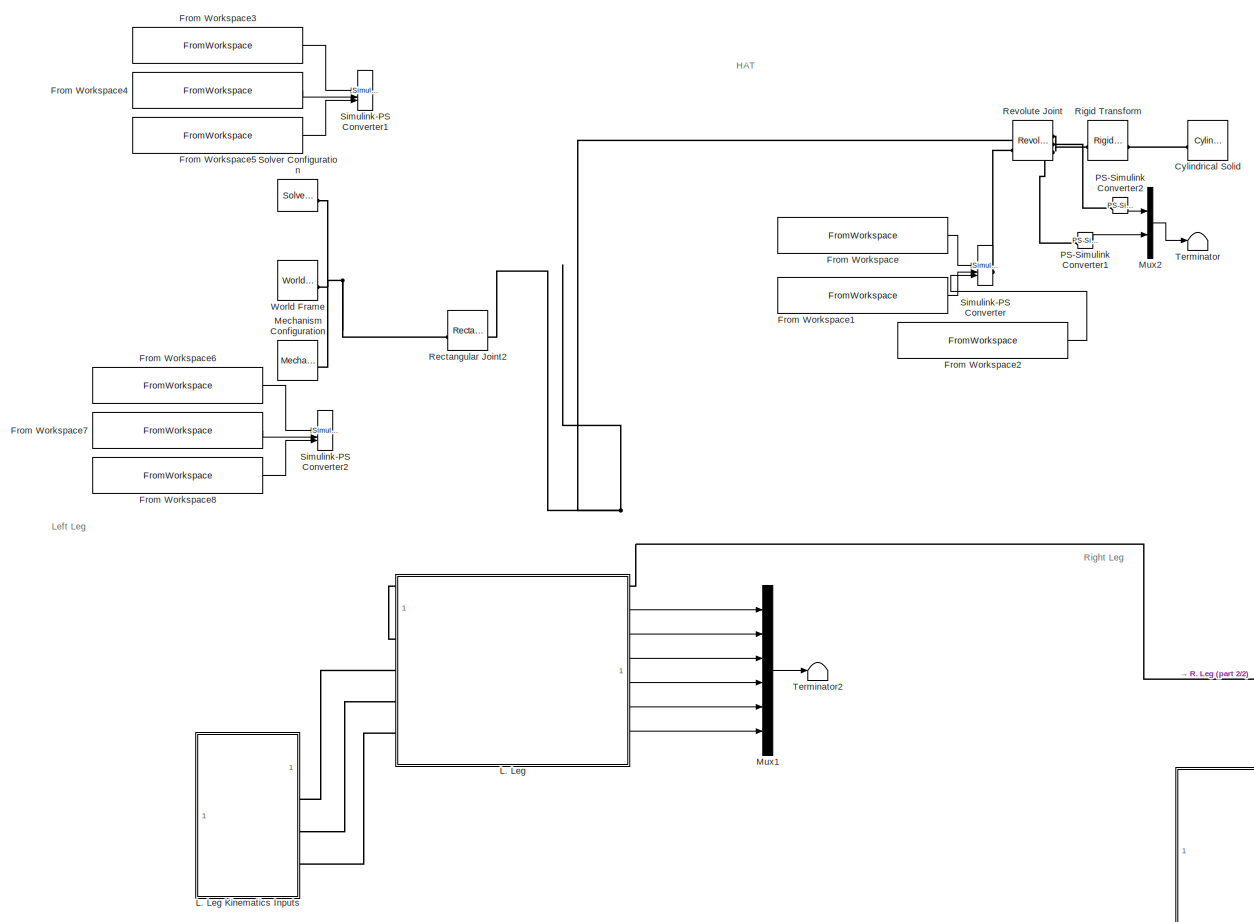
[diagram: root canvas - part 1/2, center side, full height]
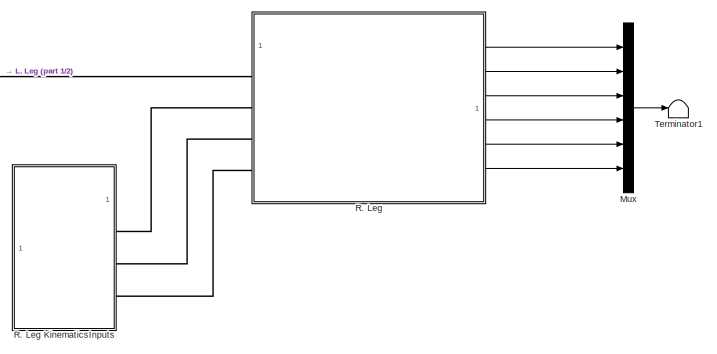
[diagram: root canvas - part 2/2, bottom right region]
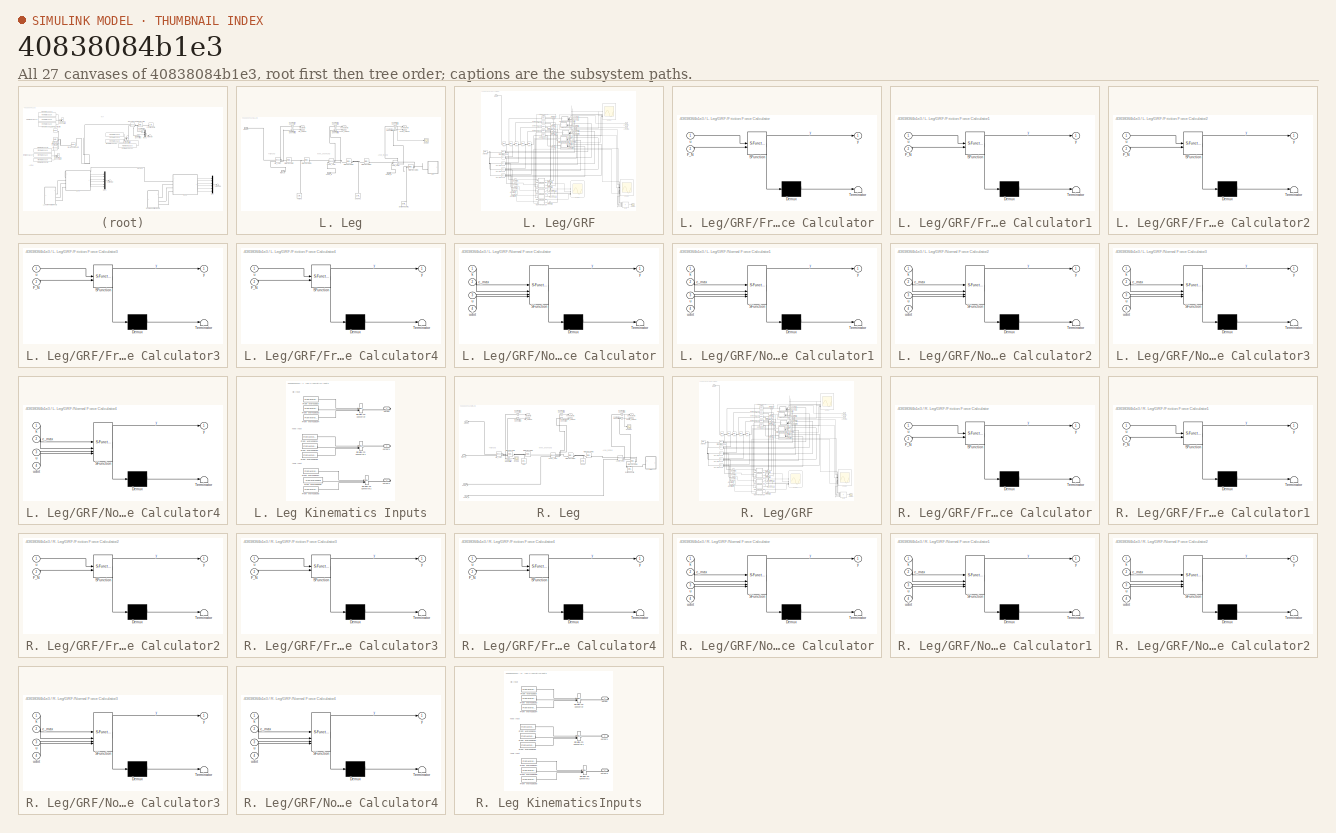
[diagram: thumbnail index - all 27 canvases of the model, root first then tree order]
MODEL slx_40838084b1e3
KIND model
CONFIG AbsTol = auto
CONFIG EnableMultiTasking = off
CONFIG FixedStep = auto
CONFIG MaxStep = 1e-3
CONFIG MinStep = auto
CONFIG RelTol = 1e-5
CONFIG SampleTimeConstraint = Unconstrained
CONFIG SolverName = ode45
CONFIG StartTime = 0.0
CONFIG StopTime = t(end)
BLOCK [Reference] Cylindrical Solid  REF=sm_lib/Body Elements/Cylindrical Solid
  NameLocation = top
  SourceBlock = sm_lib/Body Elements/Cylindrical Solid
  SourceType = Cylindrical Solid
BLOCK [FromWorkspace] From Workspace
  SampleTime = dt
  VariableName = [t1.',(theta_hat_R+theta_hat_L)/2]
BLOCK [FromWorkspace] From Workspace1
  SampleTime = dt
  VariableName = [t1.',(omega_hat_R+omega_hat_L)/2]
BLOCK [FromWorkspace] From Workspace2
  SampleTime = dt
  VariableName = [t1.',(alpha_hat_R+alpha_hat_L)/2]
BLOCK [FromWorkspace] From Workspace3
  SampleTime = dt
  VariableName = [t1.',x_hip]
BLOCK [FromWorkspace] From Workspace4
  SampleTime = dt
  VariableName = [t1.',vx_hip]
BLOCK [FromWorkspace] From Workspace5
  SampleTime = dt
  VariableName = [t1.',ax_hip]
BLOCK [FromWorkspace] From Workspace6
  SampleTime = dt
  VariableName = [t1.',y_hip]
BLOCK [FromWorkspace] From Workspace7
  SampleTime = dt
  VariableName = [t1.',vy_hip]
BLOCK [FromWorkspace] From Workspace8
  SampleTime = dt
  VariableName = [t1.',ay_hip]
BLOCK [SubSystem] L. Leg
BLOCK [SubSystem] L. Leg Kinematics Inputs
BLOCK [FromWorkspace] L. Leg Kinematics Inputs/From Workspace
  SampleTime = dt
  VariableName = [t1.',theta_hip_L]
BLOCK [FromWorkspace] L. Leg Kinematics Inputs/From Workspace1
  SampleTime = dt
  VariableName = [t1.',theta_knee_L ]
BLOCK [FromWorkspace] L. Leg Kinematics Inputs/From Workspace3
  SampleTime = dt
  VariableName = [t1.',omega_hip_L]
BLOCK [FromWorkspace] L. Leg Kinematics Inputs/From Workspace4
  SampleTime = dt
  VariableName = [t1.',alpha_hip_L]
BLOCK [FromWorkspace] L. Leg Kinematics Inputs/From Workspace5
  SampleTime = dt
  VariableName = [t1.',omega_knee_L]
BLOCK [FromWorkspace] L. Leg Kinematics Inputs/From Workspace6
  SampleTime = dt
  VariableName = [t1.',alpha_knee_L]
BLOCK [FromWorkspace] L. Leg Kinematics Inputs/From Workspace7
  SampleTime = dt
  VariableName = [t1.',theta_ankle_L]
BLOCK [FromWorkspace] L. Leg Kinematics Inputs/From Workspace8
  SampleTime = dt
  VariableName = [t1.',omega_ankle_L]
BLOCK [FromWorkspace] L. Leg Kinematics Inputs/From Workspace9
  SampleTime = dt
  VariableName = [t1.',alpha_ankle_L]
BLOCK [Reference] L. Leg Kinematics Inputs/Simulink-PS Converter  REF=nesl_utility/Simulink-PS
Converter
  SourceBlock = nesl_utility/Simulink-PS\nConverter
  SourceType = Simulink-PS\nConverter
BLOCK [Reference] L. Leg Kinematics Inputs/Simulink-PS Converter1  REF=nesl_utility/Simulink-PS
Converter
  SourceBlock = nesl_utility/Simulink-PS\nConverter
  SourceType = Simulink-PS\nConverter
BLOCK [Reference] L. Leg Kinematics Inputs/Simulink-PS Converter2  REF=nesl_utility/Simulink-PS
Converter
  SourceBlock = nesl_utility/Simulink-PS\nConverter
  SourceType = Simulink-PS\nConverter
BLOCK [PMIOPort] L. Leg Kinematics Inputs/output
  Side = Right
BLOCK [PMIOPort] L. Leg Kinematics Inputs/output1
  Port = 2
  Side = Right
BLOCK [PMIOPort] L. Leg Kinematics Inputs/output2
  Port = 3
  Side = Right
BLOCK [Reference] L. Leg/Ankle_Joint  REF=sm_lib/Joints/Revolute Joint
  SourceBlock = sm_lib/Joints/Revolute Joint
  SourceType = Revolute Joint
BLOCK [PMIOPort] L. Leg/Conn1
  Side = Left
BLOCK [Reference] L. Leg/Extruded Solid1  REF=sm_lib/Body Elements/Extruded Solid
  NameLocation = right
  SourceBlock = sm_lib/Body Elements/Extruded Solid
  SourceType = Extruded Solid
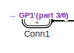
[diagram: L. Leg/GRF - part 1/6, top left region]
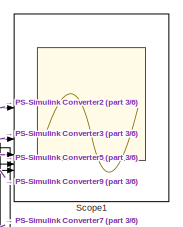
[diagram: L. Leg/GRF - part 2/6, top right region]
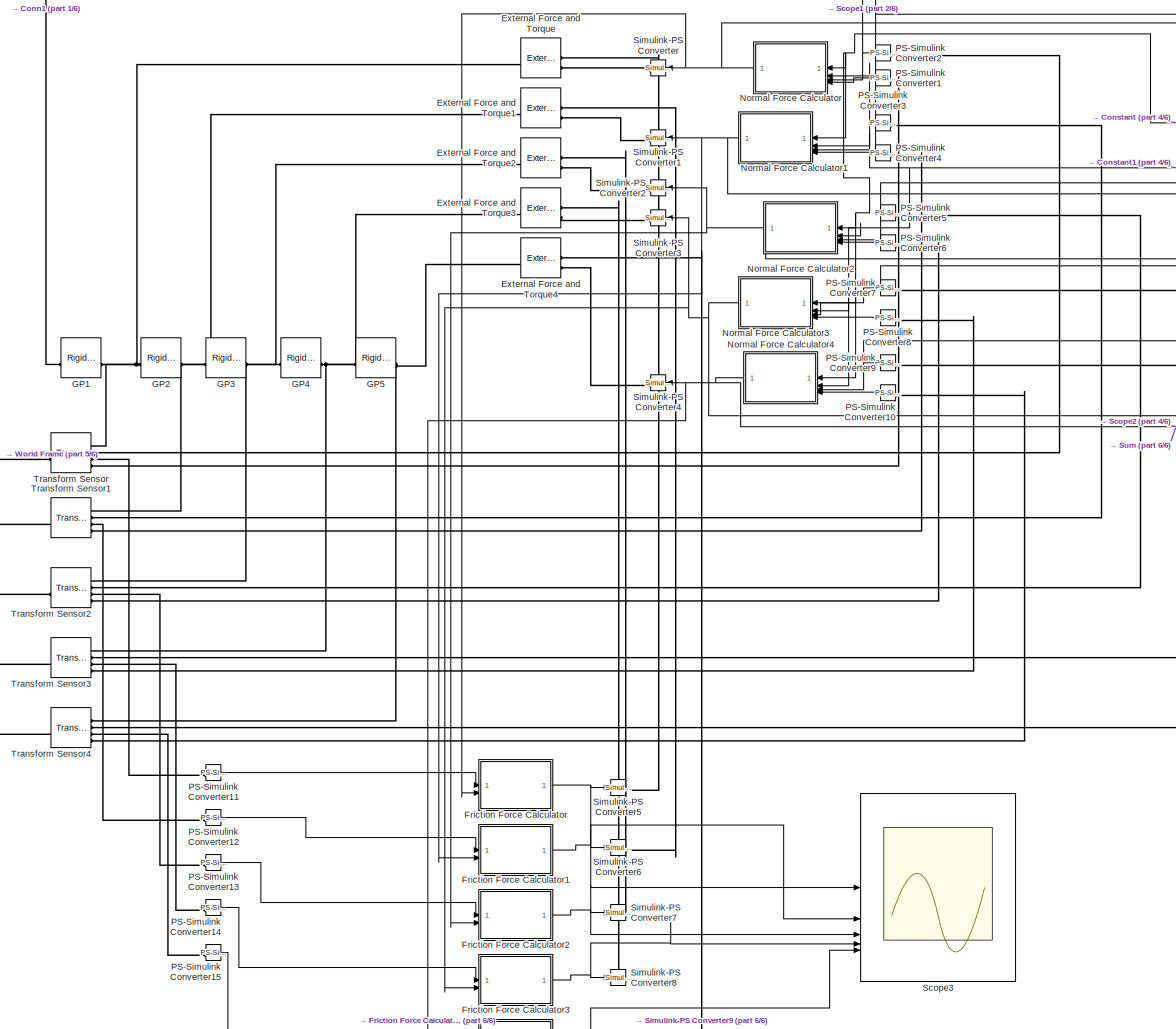
[diagram: L. Leg/GRF - part 3/6, center side, full height]
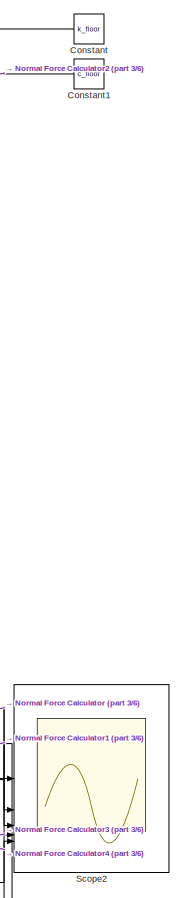
[diagram: L. Leg/GRF - part 4/6, middle right region]
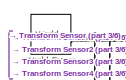
[diagram: L. Leg/GRF - part 5/6, middle left region]
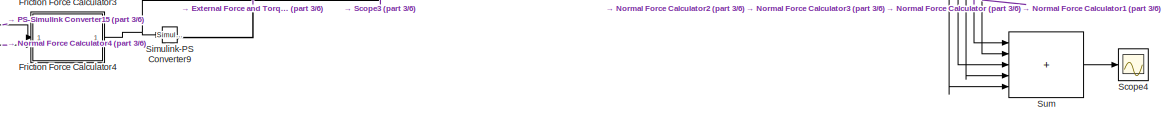
[diagram: L. Leg/GRF - part 6/6, bottom right region]
BLOCK [SubSystem] L. Leg/GRF
BLOCK [PMIOPort] L. Leg/GRF/Conn1
  Side = Left
BLOCK [Constant] L. Leg/GRF/Constant
  NameLocation = top
  Value = k_floor
BLOCK [Constant] L. Leg/GRF/Constant1
  NameLocation = top
  Value = c_floor
BLOCK [Reference] L. Leg/GRF/External Force and Torque  REF=sm_lib/Forces and
Torques/External Force
and Torque
  NameLocation = top
  SourceBlock = sm_lib/Forces and\nTorques/External Force\nand Torque
  SourceType = External Force\nand Torque
BLOCK [Reference] L. Leg/GRF/External Force and Torque1  REF=sm_lib/Forces and
Torques/External Force
and Torque
  NameLocation = top
  SourceBlock = sm_lib/Forces and\nTorques/External Force\nand Torque
  SourceType = External Force\nand Torque
BLOCK [Reference] L. Leg/GRF/External Force and Torque2  REF=sm_lib/Forces and
Torques/External Force
and Torque
  NameLocation = top
  SourceBlock = sm_lib/Forces and\nTorques/External Force\nand Torque
  SourceType = External Force\nand Torque
BLOCK [Reference] L. Leg/GRF/External Force and Torque3  REF=sm_lib/Forces and
Torques/External Force
and Torque
  NameLocation = top
  SourceBlock = sm_lib/Forces and\nTorques/External Force\nand Torque
  SourceType = External Force\nand Torque
BLOCK [Reference] L. Leg/GRF/External Force and Torque4  REF=sm_lib/Forces and
Torques/External Force
and Torque
  NameLocation = top
  SourceBlock = sm_lib/Forces and\nTorques/External Force\nand Torque
  SourceType = External Force\nand Torque
BLOCK [SubSystem] L. Leg/GRF/Friction Force Calculator
  ErrorFcn = Stateflow.Translate.translate
  PermitHierarchicalResolution = ExplicitOnly
  SFBlockType = MATLAB Function
  TreatAsAtomicUnit = on
BLOCK [Demux] L. Leg/GRF/Friction Force Calculator/ Demux 
  Outputs = 1
BLOCK [S-Function] L. Leg/GRF/Friction Force Calculator/ SFunction 
  EnableBusSupport = on
  FunctionName = sf_sfun
  PortCounts = [2 2]
  SFcnIsStateOwnerBlock = off
  SFunctionDeploymentMode = off
  Tag = Stateflow S-Function 11
BLOCK [Terminator] L. Leg/GRF/Friction Force Calculator/ Terminator 
BLOCK [Inport] L. Leg/GRF/Friction Force Calculator/F_N
  Port = 2
BLOCK [Inport] L. Leg/GRF/Friction Force Calculator/u
BLOCK [Outport] L. Leg/GRF/Friction Force Calculator/y
BLOCK [SubSystem] L. Leg/GRF/Friction Force Calculator1
  ErrorFcn = Stateflow.Translate.translate
  PermitHierarchicalResolution = ExplicitOnly
  SFBlockType = MATLAB Function
  TreatAsAtomicUnit = on
BLOCK [Demux] L. Leg/GRF/Friction Force Calculator1/ Demux 
  Outputs = 1
BLOCK [S-Function] L. Leg/GRF/Friction Force Calculator1/ SFunction 
  EnableBusSupport = on
  FunctionName = sf_sfun
  PortCounts = [2 2]
  SFcnIsStateOwnerBlock = off
  SFunctionDeploymentMode = off
  Tag = Stateflow S-Function 12
BLOCK [Terminator] L. Leg/GRF/Friction Force Calculator1/ Terminator 
BLOCK [Inport] L. Leg/GRF/Friction Force Calculator1/F_N
  Port = 2
BLOCK [Inport] L. Leg/GRF/Friction Force Calculator1/u
BLOCK [Outport] L. Leg/GRF/Friction Force Calculator1/y
BLOCK [SubSystem] L. Leg/GRF/Friction Force Calculator2
  ErrorFcn = Stateflow.Translate.translate
  PermitHierarchicalResolution = ExplicitOnly
  SFBlockType = MATLAB Function
  TreatAsAtomicUnit = on
BLOCK [Demux] L. Leg/GRF/Friction Force Calculator2/ Demux 
  Outputs = 1
BLOCK [S-Function] L. Leg/GRF/Friction Force Calculator2/ SFunction 
  EnableBusSupport = on
  FunctionName = sf_sfun
  PortCounts = [2 2]
  SFcnIsStateOwnerBlock = off
  SFunctionDeploymentMode = off
  Tag = Stateflow S-Function 13
BLOCK [Terminator] L. Leg/GRF/Friction Force Calculator2/ Terminator 
BLOCK [Inport] L. Leg/GRF/Friction Force Calculator2/F_N
  Port = 2
BLOCK [Inport] L. Leg/GRF/Friction Force Calculator2/u
BLOCK [Outport] L. Leg/GRF/Friction Force Calculator2/y
BLOCK [SubSystem] L. Leg/GRF/Friction Force Calculator3
  ErrorFcn = Stateflow.Translate.translate
  PermitHierarchicalResolution = ExplicitOnly
  SFBlockType = MATLAB Function
  TreatAsAtomicUnit = on
BLOCK [Demux] L. Leg/GRF/Friction Force Calculator3/ Demux 
  Outputs = 1
BLOCK [S-Function] L. Leg/GRF/Friction Force Calculator3/ SFunction 
  EnableBusSupport = on
  FunctionName = sf_sfun
  PortCounts = [2 2]
  SFcnIsStateOwnerBlock = off
  SFunctionDeploymentMode = off
  Tag = Stateflow S-Function 14
BLOCK [Terminator] L. Leg/GRF/Friction Force Calculator3/ Terminator 
BLOCK [Inport] L. Leg/GRF/Friction Force Calculator3/F_N
  Port = 2
BLOCK [Inport] L. Leg/GRF/Friction Force Calculator3/u
BLOCK [Outport] L. Leg/GRF/Friction Force Calculator3/y
BLOCK [SubSystem] L. Leg/GRF/Friction Force Calculator4
  ErrorFcn = Stateflow.Translate.translate
  PermitHierarchicalResolution = ExplicitOnly
  SFBlockType = MATLAB Function
  TreatAsAtomicUnit = on
BLOCK [Demux] L. Leg/GRF/Friction Force Calculator4/ Demux 
  Outputs = 1
BLOCK [S-Function] L. Leg/GRF/Friction Force Calculator4/ SFunction 
  EnableBusSupport = on
  FunctionName = sf_sfun
  PortCounts = [2 2]
  SFcnIsStateOwnerBlock = off
  SFunctionDeploymentMode = off
  Tag = Stateflow S-Function 15
BLOCK [Terminator] L. Leg/GRF/Friction Force Calculator4/ Terminator 
BLOCK [Inport] L. Leg/GRF/Friction Force Calculator4/F_N
  Port = 2
BLOCK [Inport] L. Leg/GRF/Friction Force Calculator4/u
BLOCK [Outport] L. Leg/GRF/Friction Force Calculator4/y
BLOCK [Reference] L. Leg/GRF/GP1  REF=sm_lib/Frames and
Transforms/Rigid
Transform
  SourceBlock = sm_lib/Frames and\nTransforms/Rigid\nTransform
  SourceType = Rigid\nTransform
BLOCK [Reference] L. Leg/GRF/GP2  REF=sm_lib/Frames and
Transforms/Rigid
Transform
  SourceBlock = sm_lib/Frames and\nTransforms/Rigid\nTransform
  SourceType = Rigid\nTransform
BLOCK [Reference] L. Leg/GRF/GP3  REF=sm_lib/Frames and
Transforms/Rigid
Transform
  SourceBlock = sm_lib/Frames and\nTransforms/Rigid\nTransform
  SourceType = Rigid\nTransform
BLOCK [Reference] L. Leg/GRF/GP4  REF=sm_lib/Frames and
Transforms/Rigid
Transform
  SourceBlock = sm_lib/Frames and\nTransforms/Rigid\nTransform
  SourceType = Rigid\nTransform
BLOCK [Reference] L. Leg/GRF/GP5  REF=sm_lib/Frames and
Transforms/Rigid
Transform
  SourceBlock = sm_lib/Frames and\nTransforms/Rigid\nTransform
  SourceType = Rigid\nTransform
BLOCK [SubSystem] L. Leg/GRF/Normal Force Calculator
  ErrorFcn = Stateflow.Translate.translate
  NameLocation = top
  PermitHierarchicalResolution = ExplicitOnly
  SFBlockType = MATLAB Function
  TreatAsAtomicUnit = on
BLOCK [Demux] L. Leg/GRF/Normal Force Calculator/ Demux 
  Outputs = 1
BLOCK [S-Function] L. Leg/GRF/Normal Force Calculator/ SFunction 
  EnableBusSupport = on
  FunctionName = sf_sfun
  PortCounts = [4 2]
  SFcnIsStateOwnerBlock = off
  SFunctionDeploymentMode = off
  Tag = Stateflow S-Function 16
BLOCK [Terminator] L. Leg/GRF/Normal Force Calculator/ Terminator 
BLOCK [Inport] L. Leg/GRF/Normal Force Calculator/c_max
  Port = 2
BLOCK [Inport] L. Leg/GRF/Normal Force Calculator/k
BLOCK [Inport] L. Leg/GRF/Normal Force Calculator/u
  Port = 3
BLOCK [Inport] L. Leg/GRF/Normal Force Calculator/udot
  Port = 4
BLOCK [Outport] L. Leg/GRF/Normal Force Calculator/y
BLOCK [SubSystem] L. Leg/GRF/Normal Force Calculator1
  ErrorFcn = Stateflow.Translate.translate
  NameLocation = top
  PermitHierarchicalResolution = ExplicitOnly
  SFBlockType = MATLAB Function
  TreatAsAtomicUnit = on
BLOCK [Demux] L. Leg/GRF/Normal Force Calculator1/ Demux 
  Outputs = 1
BLOCK [S-Function] L. Leg/GRF/Normal Force Calculator1/ SFunction 
  EnableBusSupport = on
  FunctionName = sf_sfun
  PortCounts = [4 2]
  SFcnIsStateOwnerBlock = off
  SFunctionDeploymentMode = off
  Tag = Stateflow S-Function 17
BLOCK [Terminator] L. Leg/GRF/Normal Force Calculator1/ Terminator 
BLOCK [Inport] L. Leg/GRF/Normal Force Calculator1/c_max
  Port = 2
BLOCK [Inport] L. Leg/GRF/Normal Force Calculator1/k
BLOCK [Inport] L. Leg/GRF/Normal Force Calculator1/u
  Port = 3
BLOCK [Inport] L. Leg/GRF/Normal Force Calculator1/udot
  Port = 4
BLOCK [Outport] L. Leg/GRF/Normal Force Calculator1/y
BLOCK [SubSystem] L. Leg/GRF/Normal Force Calculator2
  ErrorFcn = Stateflow.Translate.translate
  NameLocation = top
  PermitHierarchicalResolution = ExplicitOnly
  SFBlockType = MATLAB Function
  TreatAsAtomicUnit = on
BLOCK [Demux] L. Leg/GRF/Normal Force Calculator2/ Demux 
  Outputs = 1
BLOCK [S-Function] L. Leg/GRF/Normal Force Calculator2/ SFunction 
  EnableBusSupport = on
  FunctionName = sf_sfun
  PortCounts = [4 2]
  SFcnIsStateOwnerBlock = off
  SFunctionDeploymentMode = off
  Tag = Stateflow S-Function 18
BLOCK [Terminator] L. Leg/GRF/Normal Force Calculator2/ Terminator 
BLOCK [Inport] L. Leg/GRF/Normal Force Calculator2/c_max
  Port = 2
BLOCK [Inport] L. Leg/GRF/Normal Force Calculator2/k
BLOCK [Inport] L. Leg/GRF/Normal Force Calculator2/u
  Port = 3
BLOCK [Inport] L. Leg/GRF/Normal Force Calculator2/udot
  Port = 4
BLOCK [Outport] L. Leg/GRF/Normal Force Calculator2/y
BLOCK [SubSystem] L. Leg/GRF/Normal Force Calculator3
  ErrorFcn = Stateflow.Translate.translate
  NameLocation = top
  PermitHierarchicalResolution = ExplicitOnly
  SFBlockType = MATLAB Function
  TreatAsAtomicUnit = on
BLOCK [Demux] L. Leg/GRF/Normal Force Calculator3/ Demux 
  Outputs = 1
BLOCK [S-Function] L. Leg/GRF/Normal Force Calculator3/ SFunction 
  EnableBusSupport = on
  FunctionName = sf_sfun
  PortCounts = [4 2]
  SFcnIsStateOwnerBlock = off
  SFunctionDeploymentMode = off
  Tag = Stateflow S-Function 19
BLOCK [Terminator] L. Leg/GRF/Normal Force Calculator3/ Terminator 
BLOCK [Inport] L. Leg/GRF/Normal Force Calculator3/c_max
  Port = 2
BLOCK [Inport] L. Leg/GRF/Normal Force Calculator3/k
BLOCK [Inport] L. Leg/GRF/Normal Force Calculator3/u
  Port = 3
BLOCK [Inport] L. Leg/GRF/Normal Force Calculator3/udot
  Port = 4
BLOCK [Outport] L. Leg/GRF/Normal Force Calculator3/y
BLOCK [SubSystem] L. Leg/GRF/Normal Force Calculator4
  ErrorFcn = Stateflow.Translate.translate
  NameLocation = top
  PermitHierarchicalResolution = ExplicitOnly
  SFBlockType = MATLAB Function
  TreatAsAtomicUnit = on
BLOCK [Demux] L. Leg/GRF/Normal Force Calculator4/ Demux 
  Outputs = 1
BLOCK [S-Function] L. Leg/GRF/Normal Force Calculator4/ SFunction 
  EnableBusSupport = on
  FunctionName = sf_sfun
  PortCounts = [4 2]
  SFcnIsStateOwnerBlock = off
  SFunctionDeploymentMode = off
  Tag = Stateflow S-Function 20
BLOCK [Terminator] L. Leg/GRF/Normal Force Calculator4/ Terminator 
BLOCK [Inport] L. Leg/GRF/Normal Force Calculator4/c_max
  Port = 2
BLOCK [Inport] L. Leg/GRF/Normal Force Calculator4/k
BLOCK [Inport] L. Leg/GRF/Normal Force Calculator4/u
  Port = 3
BLOCK [Inport] L. Leg/GRF/Normal Force Calculator4/udot
  Port = 4
BLOCK [Outport] L. Leg/GRF/Normal Force Calculator4/y
BLOCK [Reference] L. Leg/GRF/PS-Simulink Converter1  REF=nesl_utility/PS-Simulink
Converter
  NameLocation = top
  SourceBlock = nesl_utility/PS-Simulink\nConverter
  SourceType = PS-Simulink\nConverter
BLOCK [Reference] L. Leg/GRF/PS-Simulink Converter10  REF=nesl_utility/PS-Simulink
Converter
  NameLocation = top
  SourceBlock = nesl_utility/PS-Simulink\nConverter
  SourceType = PS-Simulink\nConverter
BLOCK [Reference] L. Leg/GRF/PS-Simulink Converter11  REF=nesl_utility/PS-Simulink
Converter
  SourceBlock = nesl_utility/PS-Simulink\nConverter
  SourceType = PS-Simulink\nConverter
BLOCK [Reference] L. Leg/GRF/PS-Simulink Converter12  REF=nesl_utility/PS-Simulink
Converter
  SourceBlock = nesl_utility/PS-Simulink\nConverter
  SourceType = PS-Simulink\nConverter
BLOCK [Reference] L. Leg/GRF/PS-Simulink Converter13  REF=nesl_utility/PS-Simulink
Converter
  SourceBlock = nesl_utility/PS-Simulink\nConverter
  SourceType = PS-Simulink\nConverter
BLOCK [Reference] L. Leg/GRF/PS-Simulink Converter14  REF=nesl_utility/PS-Simulink
Converter
  SourceBlock = nesl_utility/PS-Simulink\nConverter
  SourceType = PS-Simulink\nConverter
BLOCK [Reference] L. Leg/GRF/PS-Simulink Converter15  REF=nesl_utility/PS-Simulink
Converter
  SourceBlock = nesl_utility/PS-Simulink\nConverter
  SourceType = PS-Simulink\nConverter
BLOCK [Reference] L. Leg/GRF/PS-Simulink Converter2  REF=nesl_utility/PS-Simulink
Converter
  NameLocation = top
  SourceBlock = nesl_utility/PS-Simulink\nConverter
  SourceType = PS-Simulink\nConverter
BLOCK [Reference] L. Leg/GRF/PS-Simulink Converter3  REF=nesl_utility/PS-Simulink
Converter
  NameLocation = top
  SourceBlock = nesl_utility/PS-Simulink\nConverter
  SourceType = PS-Simulink\nConverter
BLOCK [Reference] L. Leg/GRF/PS-Simulink Converter4  REF=nesl_utility/PS-Simulink
Converter
  NameLocation = top
  SourceBlock = nesl_utility/PS-Simulink\nConverter
  SourceType = PS-Simulink\nConverter
BLOCK [Reference] L. Leg/GRF/PS-Simulink Converter5  REF=nesl_utility/PS-Simulink
Converter
  NameLocation = top
  SourceBlock = nesl_utility/PS-Simulink\nConverter
  SourceType = PS-Simulink\nConverter
BLOCK [Reference] L. Leg/GRF/PS-Simulink Converter6  REF=nesl_utility/PS-Simulink
Converter
  NameLocation = top
  SourceBlock = nesl_utility/PS-Simulink\nConverter
  SourceType = PS-Simulink\nConverter
BLOCK [Reference] L. Leg/GRF/PS-Simulink Converter7  REF=nesl_utility/PS-Simulink
Converter
  SourceBlock = nesl_utility/PS-Simulink\nConverter
  SourceType = PS-Simulink\nConverter
BLOCK [Reference] L. Leg/GRF/PS-Simulink Converter8  REF=nesl_utility/PS-Simulink
Converter
  NameLocation = top
  SourceBlock = nesl_utility/PS-Simulink\nConverter
  SourceType = PS-Simulink\nConverter
BLOCK [Reference] L. Leg/GRF/PS-Simulink Converter9  REF=nesl_utility/PS-Simulink
Converter
  SourceBlock = nesl_utility/PS-Simulink\nConverter
  SourceType = PS-Simulink\nConverter
BLOCK [Scope] L. Leg/GRF/Scope1
  Floating = off
  NumInputPorts = 5
  ScopeSpecificationString = Simulink.scopes.TimeScopeBlockCfg('CurrentConfiguration', extmgr.ConfigurationSet(extmgr.Configuration('Core','General UI',true),extmgr.Configuration('Core','Source UI',true),extmgr.Configuration('Sources','WiredSimulink',true,'DataLoggingVariableName','ScopeData1'),extmgr.Configuration('Visuals','Time Domain',true,'SerializedDisplays',{struct('MinYLimReal','-0.10315','MaxYLimReal','0.21898','YLab...<+1600ch>
BLOCK [Scope] L. Leg/GRF/Scope2
  Floating = off
  NumInputPorts = 5
  ScopeSpecificationString = Simulink.scopes.TimeScopeBlockCfg('CurrentConfiguration', extmgr.ConfigurationSet(extmgr.Configuration('Core','General UI',true),extmgr.Configuration('Core','Source UI',true),extmgr.Configuration('Sources','WiredSimulink',true,'DataLoggingVariableName','ScopeData2'),extmgr.Configuration('Visuals','Time Domain',true,'SerializedDisplays',{struct('MinYLimReal','-49.43813','MaxYLimReal','444.9432','YL...<+1615ch>
BLOCK [Scope] L. Leg/GRF/Scope3
  Floating = off
  NumInputPorts = 5
  ScopeSpecificationString = Simulink.scopes.TimeScopeBlockCfg('CurrentConfiguration', extmgr.ConfigurationSet(extmgr.Configuration('Core','General UI',true),extmgr.Configuration('Core','Source UI',true),extmgr.Configuration('Sources','WiredSimulink',true,'DataLoggingVariableName','ScopeData3'),extmgr.Configuration('Visuals','Time Domain',true,'SerializedDisplays',{struct('MinYLimReal','-848.349','MaxYLimReal','779.66239','YL...<+1535ch>
BLOCK [Scope] L. Leg/GRF/Scope4
  Floating = off
  NumInputPorts = 1
  ScopeSpecificationString = Simulink.scopes.TimeScopeBlockCfg('CurrentConfiguration', extmgr.ConfigurationSet(extmgr.Configuration('Core','General UI',true),extmgr.Configuration('Core','Source UI',true),extmgr.Configuration('Sources','WiredSimulink',true,'DataLoggingVariableName','ScopeData7'),extmgr.Configuration('Visuals','Time Domain',true,'SerializedDisplays',{struct('MinYLimReal','-95.78207','MaxYLimReal','862.03867','Y...<+1513ch>
BLOCK [Reference] L. Leg/GRF/Simulink-PS Converter  REF=nesl_utility/Simulink-PS
Converter
  NameLocation = top
  SourceBlock = nesl_utility/Simulink-PS\nConverter
  SourceType = Simulink-PS\nConverter
BLOCK [Reference] L. Leg/GRF/Simulink-PS Converter1  REF=nesl_utility/Simulink-PS
Converter
  NameLocation = top
  SourceBlock = nesl_utility/Simulink-PS\nConverter
  SourceType = Simulink-PS\nConverter
BLOCK [Reference] L. Leg/GRF/Simulink-PS Converter2  REF=nesl_utility/Simulink-PS
Converter
  NameLocation = top
  SourceBlock = nesl_utility/Simulink-PS\nConverter
  SourceType = Simulink-PS\nConverter
BLOCK [Reference] L. Leg/GRF/Simulink-PS Converter3  REF=nesl_utility/Simulink-PS
Converter
  NameLocation = top
  SourceBlock = nesl_utility/Simulink-PS\nConverter
  SourceType = Simulink-PS\nConverter
BLOCK [Reference] L. Leg/GRF/Simulink-PS Converter4  REF=nesl_utility/Simulink-PS
Converter
  NameLocation = top
  SourceBlock = nesl_utility/Simulink-PS\nConverter
  SourceType = Simulink-PS\nConverter
BLOCK [Reference] L. Leg/GRF/Simulink-PS Converter5  REF=nesl_utility/Simulink-PS
Converter
  SourceBlock = nesl_utility/Simulink-PS\nConverter
  SourceType = Simulink-PS\nConverter
BLOCK [Reference] L. Leg/GRF/Simulink-PS Converter6  REF=nesl_utility/Simulink-PS
Converter
  SourceBlock = nesl_utility/Simulink-PS\nConverter
  SourceType = Simulink-PS\nConverter
BLOCK [Reference] L. Leg/GRF/Simulink-PS Converter7  REF=nesl_utility/Simulink-PS
Converter
  SourceBlock = nesl_utility/Simulink-PS\nConverter
  SourceType = Simulink-PS\nConverter
BLOCK [Reference] L. Leg/GRF/Simulink-PS Converter8  REF=nesl_utility/Simulink-PS
Converter
  SourceBlock = nesl_utility/Simulink-PS\nConverter
  SourceType = Simulink-PS\nConverter
BLOCK [Reference] L. Leg/GRF/Simulink-PS Converter9  REF=nesl_utility/Simulink-PS
Converter
  SourceBlock = nesl_utility/Simulink-PS\nConverter
  SourceType = Simulink-PS\nConverter
BLOCK [Sum] L. Leg/GRF/Sum
  IconShape = rectangular
  Inputs = +++++
BLOCK [Reference] L. Leg/GRF/Transform Sensor  REF=sm_lib/Frames and
Transforms/Transform
Sensor
  SourceBlock = sm_lib/Frames and\nTransforms/Transform\nSensor
  SourceType = Transform\nSensor
BLOCK [Reference] L. Leg/GRF/Transform Sensor1  REF=sm_lib/Frames and
Transforms/Transform
Sensor
  SourceBlock = sm_lib/Frames and\nTransforms/Transform\nSensor
  SourceType = Transform\nSensor
BLOCK [Reference] L. Leg/GRF/Transform Sensor2  REF=sm_lib/Frames and
Transforms/Transform
Sensor
  SourceBlock = sm_lib/Frames and\nTransforms/Transform\nSensor
  SourceType = Transform\nSensor
BLOCK [Reference] L. Leg/GRF/Transform Sensor3  REF=sm_lib/Frames and
Transforms/Transform
Sensor
  SourceBlock = sm_lib/Frames and\nTransforms/Transform\nSensor
  SourceType = Transform\nSensor
BLOCK [Reference] L. Leg/GRF/Transform Sensor4  REF=sm_lib/Frames and
Transforms/Transform
Sensor
  SourceBlock = sm_lib/Frames and\nTransforms/Transform\nSensor
  SourceType = Transform\nSensor
BLOCK [Reference] L. Leg/GRF/World Frame  REF=sm_lib/Frames and
Transforms/World Frame
  SourceBlock = sm_lib/Frames and\nTransforms/World Frame
  SourceType = World Frame
BLOCK [Reference] L. Leg/Hip_Joint  REF=sm_lib/Joints/Revolute Joint
  SourceBlock = sm_lib/Joints/Revolute Joint
  SourceType = Revolute Joint
BLOCK [Reference] L. Leg/Knee_Joint  REF=sm_lib/Joints/Revolute Joint
  SourceBlock = sm_lib/Joints/Revolute Joint
  SourceType = Revolute Joint
BLOCK [Reference] L. Leg/PS-Simulink Converter  REF=nesl_utility/PS-Simulink
Converter
  SourceBlock = nesl_utility/PS-Simulink\nConverter
  SourceType = PS-Simulink\nConverter
BLOCK [Reference] L. Leg/PS-Simulink Converter1  REF=nesl_utility/PS-Simulink
Converter
  SourceBlock = nesl_utility/PS-Simulink\nConverter
  SourceType = PS-Simulink\nConverter
BLOCK [Reference] L. Leg/PS-Simulink Converter2  REF=nesl_utility/PS-Simulink
Converter
  SourceBlock = nesl_utility/PS-Simulink\nConverter
  SourceType = PS-Simulink\nConverter
BLOCK [Reference] L. Leg/PS-Simulink Converter3  REF=nesl_utility/PS-Simulink
Converter
  SourceBlock = nesl_utility/PS-Simulink\nConverter
  SourceType = PS-Simulink\nConverter
BLOCK [Reference] L. Leg/PS-Simulink Converter4  REF=nesl_utility/PS-Simulink
Converter
  SourceBlock = nesl_utility/PS-Simulink\nConverter
  SourceType = PS-Simulink\nConverter
BLOCK [Reference] L. Leg/PS-Simulink Converter5  REF=nesl_utility/PS-Simulink
Converter
  SourceBlock = nesl_utility/PS-Simulink\nConverter
  SourceType = PS-Simulink\nConverter
BLOCK [Reference] L. Leg/Rigid Transform  REF=sm_lib/Frames and
Transforms/Rigid
Transform
  NameLocation = top
  SourceBlock = sm_lib/Frames and\nTransforms/Rigid\nTransform
  SourceType = Rigid\nTransform
BLOCK [Reference] L. Leg/Rigid Transform1  REF=sm_lib/Frames and
Transforms/Rigid
Transform
  SourceBlock = sm_lib/Frames and\nTransforms/Rigid\nTransform
  SourceType = Rigid\nTransform
BLOCK [Reference] L. Leg/Rigid Transform2  REF=sm_lib/Frames and
Transforms/Rigid
Transform
  NameLocation = top
  SourceBlock = sm_lib/Frames and\nTransforms/Rigid\nTransform
  SourceType = Rigid\nTransform
BLOCK [Reference] L. Leg/Rigid Transform3  REF=sm_lib/Frames and
Transforms/Rigid
Transform
  SourceBlock = sm_lib/Frames and\nTransforms/Rigid\nTransform
  SourceType = Rigid\nTransform
BLOCK [Reference] L. Leg/Rigid Transform6  REF=sm_lib/Frames and
Transforms/Rigid
Transform
  SourceBlock = sm_lib/Frames and\nTransforms/Rigid\nTransform
  SourceType = Rigid\nTransform
BLOCK [Scope] L. Leg/Scope
  Floating = off
  NumInputPorts = 1
  ScopeSpecificationString = Simulink.scopes.TimeScopeBlockCfg('CurrentConfiguration', extmgr.ConfigurationSet(extmgr.Configuration('Core','General UI',true),extmgr.Configuration('Core','Source UI',true),extmgr.Configuration('Sources','WiredSimulink',true),extmgr.Configuration('Visuals','Time Domain',true,'SerializedDisplays',{struct('MinYLimReal','-0.18254','MaxYLimReal','0.41352','YLabelReal','','MinYLimMag','0.00000','MaxY...<+1431ch>
BLOCK [Reference] L. Leg/Shank1  REF=sm_lib/Body Elements/Cylindrical Solid
  NameLocation = right
  SourceBlock = sm_lib/Body Elements/Cylindrical Solid
  SourceType = Cylindrical Solid
BLOCK [Reference] L. Leg/Thigh1  REF=sm_lib/Body Elements/Cylindrical Solid
  NameLocation = right
  SourceBlock = sm_lib/Body Elements/Cylindrical Solid
  SourceType = Cylindrical Solid
BLOCK [PMIOPort] L. Leg/ankle_in
  Port = 4
  Side = Left
BLOCK [Outport] L. Leg/ankle_omega
  Port = 6
BLOCK [Outport] L. Leg/ankle_theta
  Port = 5
BLOCK [Outport] L. Leg/hip_omega
  Port = 2
BLOCK [Outport] L. Leg/hip_theta
BLOCK [PMIOPort] L. Leg/knee_in
  Port = 3
  Side = Left
BLOCK [Outport] L. Leg/knee_omega
  Port = 4
BLOCK [Outport] L. Leg/knee_theta
  Port = 3
BLOCK [PMIOPort] L. Leg/thigh_in
  Port = 2
  Side = Left
BLOCK [Reference] Mechanism Configuration  REF=sm_lib/Utilities/Mechanism
Configuration
  SourceBlock = sm_lib/Utilities/Mechanism\nConfiguration
  SourceType = Mechanism\nConfiguration
BLOCK [Mux] Mux
  DisplayOption = bar
  Inputs = 6
BLOCK [Mux] Mux1
  DisplayOption = bar
  Inputs = 6
BLOCK [Mux] Mux2
  DisplayOption = bar
  Inputs = 2
BLOCK [Reference] PS-Simulink Converter1  REF=nesl_utility/PS-Simulink
Converter
  SourceBlock = nesl_utility/PS-Simulink\nConverter
  SourceType = PS-Simulink\nConverter
BLOCK [Reference] PS-Simulink Converter2  REF=nesl_utility/PS-Simulink
Converter
  SourceBlock = nesl_utility/PS-Simulink\nConverter
  SourceType = PS-Simulink\nConverter
BLOCK [SubSystem] R. Leg
BLOCK [SubSystem] R. Leg KinematicsInputs
BLOCK [FromWorkspace] R. Leg KinematicsInputs/From Workspace
  SampleTime = dt
  VariableName = [t1.',theta_hip_R]
BLOCK [FromWorkspace] R. Leg KinematicsInputs/From Workspace1
  SampleTime = dt
  VariableName = [t1.',theta_knee_R ]
BLOCK [FromWorkspace] R. Leg KinematicsInputs/From Workspace3
  SampleTime = dt
  VariableName = [t1.',omega_hip_R]
BLOCK [FromWorkspace] R. Leg KinematicsInputs/From Workspace4
  SampleTime = dt
  VariableName = [t1.',alpha_hip_R]
BLOCK [FromWorkspace] R. Leg KinematicsInputs/From Workspace5
  SampleTime = dt
  VariableName = [t1.',omega_knee_R]
BLOCK [FromWorkspace] R. Leg KinematicsInputs/From Workspace6
  SampleTime = dt
  VariableName = [t1.',alpha_knee_R]
BLOCK [FromWorkspace] R. Leg KinematicsInputs/From Workspace7
  SampleTime = dt
  VariableName = [t1.',theta_ankle_R]
BLOCK [FromWorkspace] R. Leg KinematicsInputs/From Workspace8
  SampleTime = dt
  VariableName = [t1.',omega_ankle_R]
BLOCK [FromWorkspace] R. Leg KinematicsInputs/From Workspace9
  SampleTime = dt
  VariableName = [t1.',alpha_ankle_R]
BLOCK [Reference] R. Leg KinematicsInputs/Simulink-PS Converter  REF=nesl_utility/Simulink-PS
Converter
  SourceBlock = nesl_utility/Simulink-PS\nConverter
  SourceType = Simulink-PS\nConverter
BLOCK [Reference] R. Leg KinematicsInputs/Simulink-PS Converter1  REF=nesl_utility/Simulink-PS
Converter
  SourceBlock = nesl_utility/Simulink-PS\nConverter
  SourceType = Simulink-PS\nConverter
BLOCK [Reference] R. Leg KinematicsInputs/Simulink-PS Converter2  REF=nesl_utility/Simulink-PS
Converter
  SourceBlock = nesl_utility/Simulink-PS\nConverter
  SourceType = Simulink-PS\nConverter
BLOCK [PMIOPort] R. Leg KinematicsInputs/output
  Side = Right
BLOCK [PMIOPort] R. Leg KinematicsInputs/output1
  Port = 2
  Side = Right
BLOCK [PMIOPort] R. Leg KinematicsInputs/output2
  Port = 3
  Side = Right
BLOCK [Reference] R. Leg/Ankle_Joint  REF=sm_lib/Joints/Revolute Joint
  SourceBlock = sm_lib/Joints/Revolute Joint
  SourceType = Revolute Joint
BLOCK [PMIOPort] R. Leg/Conn1
  Side = Left
BLOCK [Reference] R. Leg/Extruded Solid  REF=sm_lib/Body Elements/Extruded Solid
  NameLocation = right
  SourceBlock = sm_lib/Body Elements/Extruded Solid
  SourceType = Extruded Solid
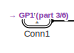
[diagram: R. Leg/GRF - part 1/6, top left region]
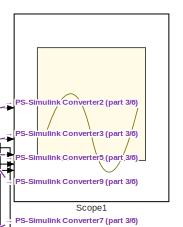
[diagram: R. Leg/GRF - part 2/6, top right region]
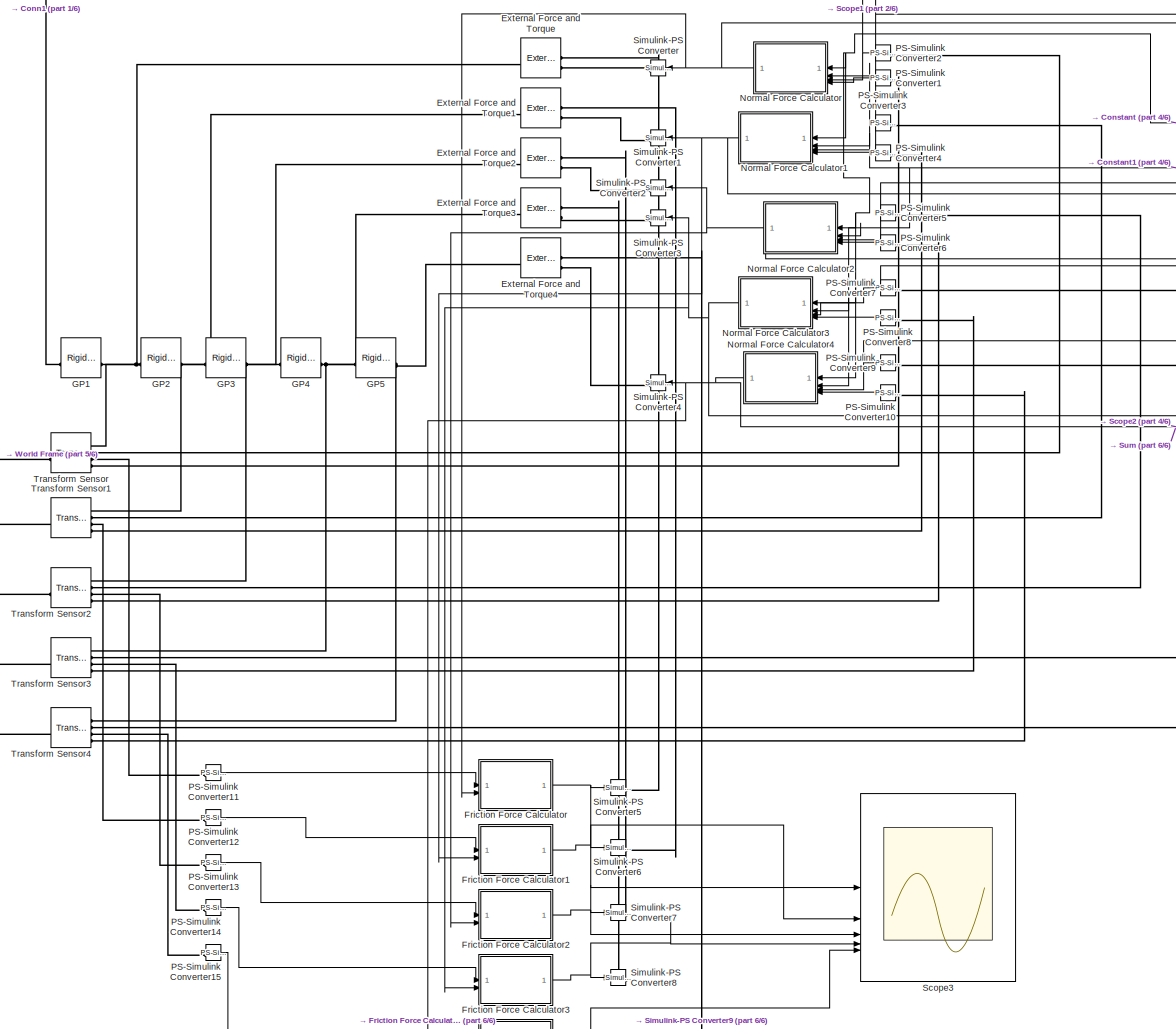
[diagram: R. Leg/GRF - part 3/6, center side, full height]
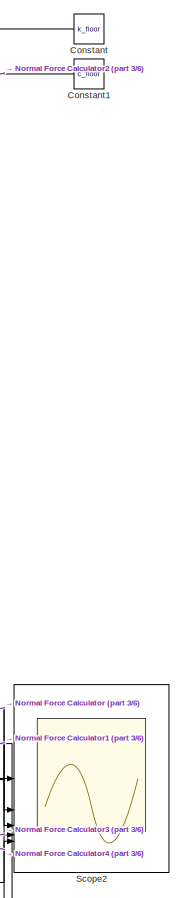
[diagram: R. Leg/GRF - part 4/6, middle right region]
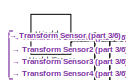
[diagram: R. Leg/GRF - part 5/6, middle left region]
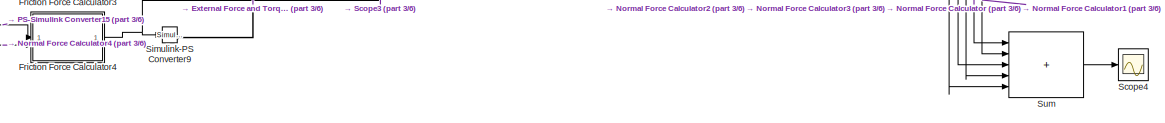
[diagram: R. Leg/GRF - part 6/6, bottom right region]
BLOCK [SubSystem] R. Leg/GRF
BLOCK [PMIOPort] R. Leg/GRF/Conn1
  Side = Left
BLOCK [Constant] R. Leg/GRF/Constant
  NameLocation = top
  Value = k_floor
BLOCK [Constant] R. Leg/GRF/Constant1
  NameLocation = top
  Value = c_floor
BLOCK [Reference] R. Leg/GRF/External Force and Torque  REF=sm_lib/Forces and
Torques/External Force
and Torque
  NameLocation = top
  SourceBlock = sm_lib/Forces and\nTorques/External Force\nand Torque
  SourceType = External Force\nand Torque
BLOCK [Reference] R. Leg/GRF/External Force and Torque1  REF=sm_lib/Forces and
Torques/External Force
and Torque
  NameLocation = top
  SourceBlock = sm_lib/Forces and\nTorques/External Force\nand Torque
  SourceType = External Force\nand Torque
BLOCK [Reference] R. Leg/GRF/External Force and Torque2  REF=sm_lib/Forces and
Torques/External Force
and Torque
  NameLocation = top
  SourceBlock = sm_lib/Forces and\nTorques/External Force\nand Torque
  SourceType = External Force\nand Torque
BLOCK [Reference] R. Leg/GRF/External Force and Torque3  REF=sm_lib/Forces and
Torques/External Force
and Torque
  NameLocation = top
  SourceBlock = sm_lib/Forces and\nTorques/External Force\nand Torque
  SourceType = External Force\nand Torque
BLOCK [Reference] R. Leg/GRF/External Force and Torque4  REF=sm_lib/Forces and
Torques/External Force
and Torque
  NameLocation = top
  SourceBlock = sm_lib/Forces and\nTorques/External Force\nand Torque
  SourceType = External Force\nand Torque
BLOCK [SubSystem] R. Leg/GRF/Friction Force Calculator
  ErrorFcn = Stateflow.Translate.translate
  PermitHierarchicalResolution = ExplicitOnly
  SFBlockType = MATLAB Function
  TreatAsAtomicUnit = on
BLOCK [Demux] R. Leg/GRF/Friction Force Calculator/ Demux 
  Outputs = 1
BLOCK [S-Function] R. Leg/GRF/Friction Force Calculator/ SFunction 
  EnableBusSupport = on
  FunctionName = sf_sfun
  PortCounts = [2 2]
  SFcnIsStateOwnerBlock = off
  SFunctionDeploymentMode = off
  Tag = Stateflow S-Function 6
BLOCK [Terminator] R. Leg/GRF/Friction Force Calculator/ Terminator 
BLOCK [Inport] R. Leg/GRF/Friction Force Calculator/F_N
  Port = 2
BLOCK [Inport] R. Leg/GRF/Friction Force Calculator/u
BLOCK [Outport] R. Leg/GRF/Friction Force Calculator/y
BLOCK [SubSystem] R. Leg/GRF/Friction Force Calculator1
  ErrorFcn = Stateflow.Translate.translate
  PermitHierarchicalResolution = ExplicitOnly
  SFBlockType = MATLAB Function
  TreatAsAtomicUnit = on
BLOCK [Demux] R. Leg/GRF/Friction Force Calculator1/ Demux 
  Outputs = 1
BLOCK [S-Function] R. Leg/GRF/Friction Force Calculator1/ SFunction 
  EnableBusSupport = on
  FunctionName = sf_sfun
  PortCounts = [2 2]
  SFcnIsStateOwnerBlock = off
  SFunctionDeploymentMode = off
  Tag = Stateflow S-Function 7
BLOCK [Terminator] R. Leg/GRF/Friction Force Calculator1/ Terminator 
BLOCK [Inport] R. Leg/GRF/Friction Force Calculator1/F_N
  Port = 2
BLOCK [Inport] R. Leg/GRF/Friction Force Calculator1/u
BLOCK [Outport] R. Leg/GRF/Friction Force Calculator1/y
BLOCK [SubSystem] R. Leg/GRF/Friction Force Calculator2
  ErrorFcn = Stateflow.Translate.translate
  PermitHierarchicalResolution = ExplicitOnly
  SFBlockType = MATLAB Function
  TreatAsAtomicUnit = on
BLOCK [Demux] R. Leg/GRF/Friction Force Calculator2/ Demux 
  Outputs = 1
BLOCK [S-Function] R. Leg/GRF/Friction Force Calculator2/ SFunction 
  EnableBusSupport = on
  FunctionName = sf_sfun
  PortCounts = [2 2]
  SFcnIsStateOwnerBlock = off
  SFunctionDeploymentMode = off
  Tag = Stateflow S-Function 8
BLOCK [Terminator] R. Leg/GRF/Friction Force Calculator2/ Terminator 
BLOCK [Inport] R. Leg/GRF/Friction Force Calculator2/F_N
  Port = 2
BLOCK [Inport] R. Leg/GRF/Friction Force Calculator2/u
BLOCK [Outport] R. Leg/GRF/Friction Force Calculator2/y
BLOCK [SubSystem] R. Leg/GRF/Friction Force Calculator3
  ErrorFcn = Stateflow.Translate.translate
  PermitHierarchicalResolution = ExplicitOnly
  SFBlockType = MATLAB Function
  TreatAsAtomicUnit = on
BLOCK [Demux] R. Leg/GRF/Friction Force Calculator3/ Demux 
  Outputs = 1
BLOCK [S-Function] R. Leg/GRF/Friction Force Calculator3/ SFunction 
  EnableBusSupport = on
  FunctionName = sf_sfun
  PortCounts = [2 2]
  SFcnIsStateOwnerBlock = off
  SFunctionDeploymentMode = off
  Tag = Stateflow S-Function 9
BLOCK [Terminator] R. Leg/GRF/Friction Force Calculator3/ Terminator 
BLOCK [Inport] R. Leg/GRF/Friction Force Calculator3/F_N
  Port = 2
BLOCK [Inport] R. Leg/GRF/Friction Force Calculator3/u
BLOCK [Outport] R. Leg/GRF/Friction Force Calculator3/y
BLOCK [SubSystem] R. Leg/GRF/Friction Force Calculator4
  ErrorFcn = Stateflow.Translate.translate
  PermitHierarchicalResolution = ExplicitOnly
  SFBlockType = MATLAB Function
  TreatAsAtomicUnit = on
BLOCK [Demux] R. Leg/GRF/Friction Force Calculator4/ Demux 
  Outputs = 1
BLOCK [S-Function] R. Leg/GRF/Friction Force Calculator4/ SFunction 
  EnableBusSupport = on
  FunctionName = sf_sfun
  PortCounts = [2 2]
  SFcnIsStateOwnerBlock = off
  SFunctionDeploymentMode = off
  Tag = Stateflow S-Function 10
BLOCK [Terminator] R. Leg/GRF/Friction Force Calculator4/ Terminator 
BLOCK [Inport] R. Leg/GRF/Friction Force Calculator4/F_N
  Port = 2
BLOCK [Inport] R. Leg/GRF/Friction Force Calculator4/u
BLOCK [Outport] R. Leg/GRF/Friction Force Calculator4/y
BLOCK [Reference] R. Leg/GRF/GP1  REF=sm_lib/Frames and
Transforms/Rigid
Transform
  SourceBlock = sm_lib/Frames and\nTransforms/Rigid\nTransform
  SourceType = Rigid\nTransform
BLOCK [Reference] R. Leg/GRF/GP2  REF=sm_lib/Frames and
Transforms/Rigid
Transform
  SourceBlock = sm_lib/Frames and\nTransforms/Rigid\nTransform
  SourceType = Rigid\nTransform
BLOCK [Reference] R. Leg/GRF/GP3  REF=sm_lib/Frames and
Transforms/Rigid
Transform
  SourceBlock = sm_lib/Frames and\nTransforms/Rigid\nTransform
  SourceType = Rigid\nTransform
BLOCK [Reference] R. Leg/GRF/GP4  REF=sm_lib/Frames and
Transforms/Rigid
Transform
  SourceBlock = sm_lib/Frames and\nTransforms/Rigid\nTransform
  SourceType = Rigid\nTransform
BLOCK [Reference] R. Leg/GRF/GP5  REF=sm_lib/Frames and
Transforms/Rigid
Transform
  SourceBlock = sm_lib/Frames and\nTransforms/Rigid\nTransform
  SourceType = Rigid\nTransform
BLOCK [SubSystem] R. Leg/GRF/Normal Force Calculator
  ErrorFcn = Stateflow.Translate.translate
  NameLocation = top
  PermitHierarchicalResolution = ExplicitOnly
  SFBlockType = MATLAB Function
  TreatAsAtomicUnit = on
BLOCK [Demux] R. Leg/GRF/Normal Force Calculator/ Demux 
  Outputs = 1
BLOCK [S-Function] R. Leg/GRF/Normal Force Calculator/ SFunction 
  EnableBusSupport = on
  FunctionName = sf_sfun
  PortCounts = [4 2]
  SFcnIsStateOwnerBlock = off
  SFunctionDeploymentMode = off
  Tag = Stateflow S-Function 2
BLOCK [Terminator] R. Leg/GRF/Normal Force Calculator/ Terminator 
BLOCK [Inport] R. Leg/GRF/Normal Force Calculator/c_max
  Port = 2
BLOCK [Inport] R. Leg/GRF/Normal Force Calculator/k
BLOCK [Inport] R. Leg/GRF/Normal Force Calculator/u
  Port = 3
BLOCK [Inport] R. Leg/GRF/Normal Force Calculator/udot
  Port = 4
BLOCK [Outport] R. Leg/GRF/Normal Force Calculator/y
BLOCK [SubSystem] R. Leg/GRF/Normal Force Calculator1
  ErrorFcn = Stateflow.Translate.translate
  NameLocation = top
  PermitHierarchicalResolution = ExplicitOnly
  SFBlockType = MATLAB Function
  TreatAsAtomicUnit = on
BLOCK [Demux] R. Leg/GRF/Normal Force Calculator1/ Demux 
  Outputs = 1
BLOCK [S-Function] R. Leg/GRF/Normal Force Calculator1/ SFunction 
  EnableBusSupport = on
  FunctionName = sf_sfun
  PortCounts = [4 2]
  SFcnIsStateOwnerBlock = off
  SFunctionDeploymentMode = off
  Tag = Stateflow S-Function 1
BLOCK [Terminator] R. Leg/GRF/Normal Force Calculator1/ Terminator 
BLOCK [Inport] R. Leg/GRF/Normal Force Calculator1/c_max
  Port = 2
BLOCK [Inport] R. Leg/GRF/Normal Force Calculator1/k
BLOCK [Inport] R. Leg/GRF/Normal Force Calculator1/u
  Port = 3
BLOCK [Inport] R. Leg/GRF/Normal Force Calculator1/udot
  Port = 4
BLOCK [Outport] R. Leg/GRF/Normal Force Calculator1/y
BLOCK [SubSystem] R. Leg/GRF/Normal Force Calculator2
  ErrorFcn = Stateflow.Translate.translate
  NameLocation = top
  PermitHierarchicalResolution = ExplicitOnly
  SFBlockType = MATLAB Function
  TreatAsAtomicUnit = on
BLOCK [Demux] R. Leg/GRF/Normal Force Calculator2/ Demux 
  Outputs = 1
BLOCK [S-Function] R. Leg/GRF/Normal Force Calculator2/ SFunction 
  EnableBusSupport = on
  FunctionName = sf_sfun
  PortCounts = [4 2]
  SFcnIsStateOwnerBlock = off
  SFunctionDeploymentMode = off
  Tag = Stateflow S-Function 3
BLOCK [Terminator] R. Leg/GRF/Normal Force Calculator2/ Terminator 
BLOCK [Inport] R. Leg/GRF/Normal Force Calculator2/c_max
  Port = 2
BLOCK [Inport] R. Leg/GRF/Normal Force Calculator2/k
BLOCK [Inport] R. Leg/GRF/Normal Force Calculator2/u
  Port = 3
BLOCK [Inport] R. Leg/GRF/Normal Force Calculator2/udot
  Port = 4
BLOCK [Outport] R. Leg/GRF/Normal Force Calculator2/y
BLOCK [SubSystem] R. Leg/GRF/Normal Force Calculator3
  ErrorFcn = Stateflow.Translate.translate
  NameLocation = top
  PermitHierarchicalResolution = ExplicitOnly
  SFBlockType = MATLAB Function
  TreatAsAtomicUnit = on
BLOCK [Demux] R. Leg/GRF/Normal Force Calculator3/ Demux 
  Outputs = 1
BLOCK [S-Function] R. Leg/GRF/Normal Force Calculator3/ SFunction 
  EnableBusSupport = on
  FunctionName = sf_sfun
  PortCounts = [4 2]
  SFcnIsStateOwnerBlock = off
  SFunctionDeploymentMode = off
  Tag = Stateflow S-Function 4
BLOCK [Terminator] R. Leg/GRF/Normal Force Calculator3/ Terminator 
BLOCK [Inport] R. Leg/GRF/Normal Force Calculator3/c_max
  Port = 2
BLOCK [Inport] R. Leg/GRF/Normal Force Calculator3/k
BLOCK [Inport] R. Leg/GRF/Normal Force Calculator3/u
  Port = 3
BLOCK [Inport] R. Leg/GRF/Normal Force Calculator3/udot
  Port = 4
BLOCK [Outport] R. Leg/GRF/Normal Force Calculator3/y
BLOCK [SubSystem] R. Leg/GRF/Normal Force Calculator4
  ErrorFcn = Stateflow.Translate.translate
  NameLocation = top
  PermitHierarchicalResolution = ExplicitOnly
  SFBlockType = MATLAB Function
  TreatAsAtomicUnit = on
BLOCK [Demux] R. Leg/GRF/Normal Force Calculator4/ Demux 
  Outputs = 1
BLOCK [S-Function] R. Leg/GRF/Normal Force Calculator4/ SFunction 
  EnableBusSupport = on
  FunctionName = sf_sfun
  PortCounts = [4 2]
  SFcnIsStateOwnerBlock = off
  SFunctionDeploymentMode = off
  Tag = Stateflow S-Function 5
BLOCK [Terminator] R. Leg/GRF/Normal Force Calculator4/ Terminator 
BLOCK [Inport] R. Leg/GRF/Normal Force Calculator4/c_max
  Port = 2
BLOCK [Inport] R. Leg/GRF/Normal Force Calculator4/k
BLOCK [Inport] R. Leg/GRF/Normal Force Calculator4/u
  Port = 3
BLOCK [Inport] R. Leg/GRF/Normal Force Calculator4/udot
  Port = 4
BLOCK [Outport] R. Leg/GRF/Normal Force Calculator4/y
BLOCK [Reference] R. Leg/GRF/PS-Simulink Converter1  REF=nesl_utility/PS-Simulink
Converter
  NameLocation = top
  SourceBlock = nesl_utility/PS-Simulink\nConverter
  SourceType = PS-Simulink\nConverter
BLOCK [Reference] R. Leg/GRF/PS-Simulink Converter10  REF=nesl_utility/PS-Simulink
Converter
  NameLocation = top
  SourceBlock = nesl_utility/PS-Simulink\nConverter
  SourceType = PS-Simulink\nConverter
BLOCK [Reference] R. Leg/GRF/PS-Simulink Converter11  REF=nesl_utility/PS-Simulink
Converter
  SourceBlock = nesl_utility/PS-Simulink\nConverter
  SourceType = PS-Simulink\nConverter
BLOCK [Reference] R. Leg/GRF/PS-Simulink Converter12  REF=nesl_utility/PS-Simulink
Converter
  SourceBlock = nesl_utility/PS-Simulink\nConverter
  SourceType = PS-Simulink\nConverter
BLOCK [Reference] R. Leg/GRF/PS-Simulink Converter13  REF=nesl_utility/PS-Simulink
Converter
  SourceBlock = nesl_utility/PS-Simulink\nConverter
  SourceType = PS-Simulink\nConverter
BLOCK [Reference] R. Leg/GRF/PS-Simulink Converter14  REF=nesl_utility/PS-Simulink
Converter
  SourceBlock = nesl_utility/PS-Simulink\nConverter
  SourceType = PS-Simulink\nConverter
BLOCK [Reference] R. Leg/GRF/PS-Simulink Converter15  REF=nesl_utility/PS-Simulink
Converter
  SourceBlock = nesl_utility/PS-Simulink\nConverter
  SourceType = PS-Simulink\nConverter
BLOCK [Reference] R. Leg/GRF/PS-Simulink Converter2  REF=nesl_utility/PS-Simulink
Converter
  NameLocation = top
  SourceBlock = nesl_utility/PS-Simulink\nConverter
  SourceType = PS-Simulink\nConverter
BLOCK [Reference] R. Leg/GRF/PS-Simulink Converter3  REF=nesl_utility/PS-Simulink
Converter
  NameLocation = top
  SourceBlock = nesl_utility/PS-Simulink\nConverter
  SourceType = PS-Simulink\nConverter
BLOCK [Reference] R. Leg/GRF/PS-Simulink Converter4  REF=nesl_utility/PS-Simulink
Converter
  NameLocation = top
  SourceBlock = nesl_utility/PS-Simulink\nConverter
  SourceType = PS-Simulink\nConverter
BLOCK [Reference] R. Leg/GRF/PS-Simulink Converter5  REF=nesl_utility/PS-Simulink
Converter
  NameLocation = top
  SourceBlock = nesl_utility/PS-Simulink\nConverter
  SourceType = PS-Simulink\nConverter
BLOCK [Reference] R. Leg/GRF/PS-Simulink Converter6  REF=nesl_utility/PS-Simulink
Converter
  NameLocation = top
  SourceBlock = nesl_utility/PS-Simulink\nConverter
  SourceType = PS-Simulink\nConverter
BLOCK [Reference] R. Leg/GRF/PS-Simulink Converter7  REF=nesl_utility/PS-Simulink
Converter
  SourceBlock = nesl_utility/PS-Simulink\nConverter
  SourceType = PS-Simulink\nConverter
BLOCK [Reference] R. Leg/GRF/PS-Simulink Converter8  REF=nesl_utility/PS-Simulink
Converter
  NameLocation = top
  SourceBlock = nesl_utility/PS-Simulink\nConverter
  SourceType = PS-Simulink\nConverter
BLOCK [Reference] R. Leg/GRF/PS-Simulink Converter9  REF=nesl_utility/PS-Simulink
Converter
  SourceBlock = nesl_utility/PS-Simulink\nConverter
  SourceType = PS-Simulink\nConverter
BLOCK [Scope] R. Leg/GRF/Scope1
  Floating = off
  NumInputPorts = 5
  ScopeSpecificationString = Simulink.scopes.TimeScopeBlockCfg('CurrentConfiguration', extmgr.ConfigurationSet(extmgr.Configuration('Core','General UI',true),extmgr.Configuration('Core','Source UI',true),extmgr.Configuration('Sources','WiredSimulink',true,'DataLoggingVariableName','ScopeData1'),extmgr.Configuration('Visuals','Time Domain',true,'SerializedDisplays',{struct('MinYLimReal','-0.09042','MaxYLimReal','0.24048','YLab...<+1570ch>
BLOCK [Scope] R. Leg/GRF/Scope2
  Floating = off
  NumInputPorts = 5
  ScopeSpecificationString = Simulink.scopes.TimeScopeBlockCfg('CurrentConfiguration', extmgr.ConfigurationSet(extmgr.Configuration('Core','General UI',true),extmgr.Configuration('Core','Source UI',true),extmgr.Configuration('Sources','WiredSimulink',true,'DataLoggingVariableName','ScopeData2'),extmgr.Configuration('Visuals','Time Domain',true,'SerializedDisplays',{struct('MinYLimReal','-218.96506','MaxYLimReal','1970.68555',...<+1597ch>
BLOCK [Scope] R. Leg/GRF/Scope3
  Floating = off
  NumInputPorts = 5
  ScopeSpecificationString = Simulink.scopes.TimeScopeBlockCfg('CurrentConfiguration', extmgr.ConfigurationSet(extmgr.Configuration('Core','General UI',true),extmgr.Configuration('Core','Source UI',true),extmgr.Configuration('Sources','WiredSimulink',true,'DataLoggingVariableName','ScopeData3'),extmgr.Configuration('Visuals','Time Domain',true,'SerializedDisplays',{struct('MinYLimReal','-848.349','MaxYLimReal','779.66239','YL...<+1535ch>
BLOCK [Scope] R. Leg/GRF/Scope4
  Floating = off
  NumInputPorts = 1
  ScopeSpecificationString = Simulink.scopes.TimeScopeBlockCfg('CurrentConfiguration', extmgr.ConfigurationSet(extmgr.Configuration('Core','General UI',true),extmgr.Configuration('Core','Source UI',true),extmgr.Configuration('Sources','WiredSimulink',true,'DataLoggingVariableName','ScopeData7'),extmgr.Configuration('Visuals','Time Domain',true,'SerializedDisplays',{struct('MinYLimReal','-96.16194','MaxYLimReal','865.45748','Y...<+1514ch>
BLOCK [Reference] R. Leg/GRF/Simulink-PS Converter  REF=nesl_utility/Simulink-PS
Converter
  NameLocation = top
  SourceBlock = nesl_utility/Simulink-PS\nConverter
  SourceType = Simulink-PS\nConverter
BLOCK [Reference] R. Leg/GRF/Simulink-PS Converter1  REF=nesl_utility/Simulink-PS
Converter
  NameLocation = top
  SourceBlock = nesl_utility/Simulink-PS\nConverter
  SourceType = Simulink-PS\nConverter
BLOCK [Reference] R. Leg/GRF/Simulink-PS Converter2  REF=nesl_utility/Simulink-PS
Converter
  NameLocation = top
  SourceBlock = nesl_utility/Simulink-PS\nConverter
  SourceType = Simulink-PS\nConverter
BLOCK [Reference] R. Leg/GRF/Simulink-PS Converter3  REF=nesl_utility/Simulink-PS
Converter
  NameLocation = top
  SourceBlock = nesl_utility/Simulink-PS\nConverter
  SourceType = Simulink-PS\nConverter
BLOCK [Reference] R. Leg/GRF/Simulink-PS Converter4  REF=nesl_utility/Simulink-PS
Converter
  NameLocation = top
  SourceBlock = nesl_utility/Simulink-PS\nConverter
  SourceType = Simulink-PS\nConverter
BLOCK [Reference] R. Leg/GRF/Simulink-PS Converter5  REF=nesl_utility/Simulink-PS
Converter
  SourceBlock = nesl_utility/Simulink-PS\nConverter
  SourceType = Simulink-PS\nConverter
BLOCK [Reference] R. Leg/GRF/Simulink-PS Converter6  REF=nesl_utility/Simulink-PS
Converter
  SourceBlock = nesl_utility/Simulink-PS\nConverter
  SourceType = Simulink-PS\nConverter
BLOCK [Reference] R. Leg/GRF/Simulink-PS Converter7  REF=nesl_utility/Simulink-PS
Converter
  SourceBlock = nesl_utility/Simulink-PS\nConverter
  SourceType = Simulink-PS\nConverter
BLOCK [Reference] R. Leg/GRF/Simulink-PS Converter8  REF=nesl_utility/Simulink-PS
Converter
  SourceBlock = nesl_utility/Simulink-PS\nConverter
  SourceType = Simulink-PS\nConverter
BLOCK [Reference] R. Leg/GRF/Simulink-PS Converter9  REF=nesl_utility/Simulink-PS
Converter
  SourceBlock = nesl_utility/Simulink-PS\nConverter
  SourceType = Simulink-PS\nConverter
BLOCK [Sum] R. Leg/GRF/Sum
  IconShape = rectangular
  Inputs = +++++
BLOCK [Reference] R. Leg/GRF/Transform Sensor  REF=sm_lib/Frames and
Transforms/Transform
Sensor
  SourceBlock = sm_lib/Frames and\nTransforms/Transform\nSensor
  SourceType = Transform\nSensor
BLOCK [Reference] R. Leg/GRF/Transform Sensor1  REF=sm_lib/Frames and
Transforms/Transform
Sensor
  SourceBlock = sm_lib/Frames and\nTransforms/Transform\nSensor
  SourceType = Transform\nSensor
BLOCK [Reference] R. Leg/GRF/Transform Sensor2  REF=sm_lib/Frames and
Transforms/Transform
Sensor
  SourceBlock = sm_lib/Frames and\nTransforms/Transform\nSensor
  SourceType = Transform\nSensor
BLOCK [Reference] R. Leg/GRF/Transform Sensor3  REF=sm_lib/Frames and
Transforms/Transform
Sensor
  SourceBlock = sm_lib/Frames and\nTransforms/Transform\nSensor
  SourceType = Transform\nSensor
BLOCK [Reference] R. Leg/GRF/Transform Sensor4  REF=sm_lib/Frames and
Transforms/Transform
Sensor
  SourceBlock = sm_lib/Frames and\nTransforms/Transform\nSensor
  SourceType = Transform\nSensor
BLOCK [Reference] R. Leg/GRF/World Frame  REF=sm_lib/Frames and
Transforms/World Frame
  SourceBlock = sm_lib/Frames and\nTransforms/World Frame
  SourceType = World Frame
BLOCK [Reference] R. Leg/Hip_Joint  REF=sm_lib/Joints/Revolute Joint
  SourceBlock = sm_lib/Joints/Revolute Joint
  SourceType = Revolute Joint
BLOCK [Reference] R. Leg/Knee_Joint  REF=sm_lib/Joints/Revolute Joint
  SourceBlock = sm_lib/Joints/Revolute Joint
  SourceType = Revolute Joint
BLOCK [Reference] R. Leg/PS-Simulink Converter  REF=nesl_utility/PS-Simulink
Converter
  SourceBlock = nesl_utility/PS-Simulink\nConverter
  SourceType = PS-Simulink\nConverter
BLOCK [Reference] R. Leg/PS-Simulink Converter1  REF=nesl_utility/PS-Simulink
Converter
  SourceBlock = nesl_utility/PS-Simulink\nConverter
  SourceType = PS-Simulink\nConverter
BLOCK [Reference] R. Leg/PS-Simulink Converter2  REF=nesl_utility/PS-Simulink
Converter
  SourceBlock = nesl_utility/PS-Simulink\nConverter
  SourceType = PS-Simulink\nConverter
BLOCK [Reference] R. Leg/PS-Simulink Converter3  REF=nesl_utility/PS-Simulink
Converter
  SourceBlock = nesl_utility/PS-Simulink\nConverter
  SourceType = PS-Simulink\nConverter
BLOCK [Reference] R. Leg/PS-Simulink Converter4  REF=nesl_utility/PS-Simulink
Converter
  SourceBlock = nesl_utility/PS-Simulink\nConverter
  SourceType = PS-Simulink\nConverter
BLOCK [Reference] R. Leg/PS-Simulink Converter5  REF=nesl_utility/PS-Simulink
Converter
  SourceBlock = nesl_utility/PS-Simulink\nConverter
  SourceType = PS-Simulink\nConverter
BLOCK [Reference] R. Leg/PS-Simulink Converter6  REF=nesl_utility/PS-Simulink
Converter
  SourceBlock = nesl_utility/PS-Simulink\nConverter
  SourceType = PS-Simulink\nConverter
BLOCK [Reference] R. Leg/Rigid Transform  REF=sm_lib/Frames and
Transforms/Rigid
Transform
  NameLocation = top
  SourceBlock = sm_lib/Frames and\nTransforms/Rigid\nTransform
  SourceType = Rigid\nTransform
BLOCK [Reference] R. Leg/Rigid Transform1  REF=sm_lib/Frames and
Transforms/Rigid
Transform
  SourceBlock = sm_lib/Frames and\nTransforms/Rigid\nTransform
  SourceType = Rigid\nTransform
BLOCK [Reference] R. Leg/Rigid Transform2  REF=sm_lib/Frames and
Transforms/Rigid
Transform
  NameLocation = top
  SourceBlock = sm_lib/Frames and\nTransforms/Rigid\nTransform
  SourceType = Rigid\nTransform
BLOCK [Reference] R. Leg/Rigid Transform3  REF=sm_lib/Frames and
Transforms/Rigid
Transform
  SourceBlock = sm_lib/Frames and\nTransforms/Rigid\nTransform
  SourceType = Rigid\nTransform
BLOCK [Reference] R. Leg/Rigid Transform6  REF=sm_lib/Frames and
Transforms/Rigid
Transform
  SourceBlock = sm_lib/Frames and\nTransforms/Rigid\nTransform
  SourceType = Rigid\nTransform
BLOCK [Scope] R. Leg/Scope
  Floating = off
  NumInputPorts = 1
  ScopeSpecificationString = Simulink.scopes.TimeScopeBlockCfg('CurrentConfiguration', extmgr.ConfigurationSet(extmgr.Configuration('Core','General UI',true),extmgr.Configuration('Core','Source UI',true),extmgr.Configuration('Sources','WiredSimulink',true,'DataLoggingVariableName','ScopeData1'),extmgr.Configuration('Visuals','Time Domain',true,'SerializedDisplays',{struct('MinYLimReal','-0.19272','MaxYLimReal','0.48838','YLab...<+1409ch>
BLOCK [Scope] R. Leg/Scope1
  Floating = off
  NumInputPorts = 1
  ScopeSpecificationString = Simulink.scopes.TimeScopeBlockCfg('CurrentConfiguration', extmgr.ConfigurationSet(extmgr.Configuration('Core','General UI',true),extmgr.Configuration('Core','Source UI',true),extmgr.Configuration('Sources','WiredSimulink',true,'DataLoggingVariableName','ScopeData1'),extmgr.Configuration('Visuals','Time Domain',true,'SerializedDisplays',{struct('MinYLimReal','-0.17824','MaxYLimReal','0.36773','YLab...<+1470ch>
BLOCK [Reference] R. Leg/Shank  REF=sm_lib/Body Elements/Cylindrical Solid
  NameLocation = right
  SourceBlock = sm_lib/Body Elements/Cylindrical Solid
  SourceType = Cylindrical Solid
BLOCK [Reference] R. Leg/Thigh  REF=sm_lib/Body Elements/Cylindrical Solid
  NameLocation = right
  SourceBlock = sm_lib/Body Elements/Cylindrical Solid
  SourceType = Cylindrical Solid
BLOCK [PMIOPort] R. Leg/ankle_in
  Port = 4
  Side = Left
BLOCK [Outport] R. Leg/ankle_omega
  Port = 6
BLOCK [Outport] R. Leg/ankle_theta
  Port = 5
BLOCK [Outport] R. Leg/hip_omega
  Port = 2
BLOCK [Outport] R. Leg/hip_theta
BLOCK [PMIOPort] R. Leg/knee_in
  Port = 3
  Side = Left
BLOCK [Outport] R. Leg/knee_omega
  Port = 4
BLOCK [Outport] R. Leg/knee_theta
  Port = 3
BLOCK [PMIOPort] R. Leg/thigh_in
  Port = 2
  Side = Left
BLOCK [Reference] Rectangular Joint2  REF=sm_lib/Joints/Rectangular
Joint
  SourceBlock = sm_lib/Joints/Rectangular\nJoint
  SourceType = Rectangular\nJoint
BLOCK [Reference] Revolute Joint  REF=sm_lib/Joints/Revolute Joint
  SourceBlock = sm_lib/Joints/Revolute Joint
  SourceType = Revolute Joint
BLOCK [Reference] Rigid Transform  REF=sm_lib/Frames and
Transforms/Rigid
Transform
  SourceBlock = sm_lib/Frames and\nTransforms/Rigid\nTransform
  SourceType = Rigid\nTransform
BLOCK [Reference] Simulink-PS Converter  REF=nesl_utility/Simulink-PS
Converter
  SourceBlock = nesl_utility/Simulink-PS\nConverter
  SourceType = Simulink-PS\nConverter
BLOCK [Reference] Simulink-PS Converter1  REF=nesl_utility/Simulink-PS
Converter
  SourceBlock = nesl_utility/Simulink-PS\nConverter
  SourceType = Simulink-PS\nConverter
BLOCK [Reference] Simulink-PS Converter2  REF=nesl_utility/Simulink-PS
Converter
  SourceBlock = nesl_utility/Simulink-PS\nConverter
  SourceType = Simulink-PS\nConverter
BLOCK [Reference] Solver Configuration  REF=nesl_utility/Solver
Configuration
  SourceBlock = nesl_utility/Solver\nConfiguration
  SourceType = Solver\nConfiguration
BLOCK [Terminator] Terminator
BLOCK [Terminator] Terminator1
BLOCK [Terminator] Terminator2
BLOCK [Reference] World Frame  REF=sm_lib/Frames and
Transforms/World Frame
  SourceBlock = sm_lib/Frames and\nTransforms/World Frame
  SourceType = World Frame
ANNOTATION (root): HAT
ANNOTATION (root): Left Leg
ANNOTATION (root): Right Leg
ANNOTATION L. Leg: Ankle_foot Seg
ANNOTATION L. Leg: Knee_Shank Seg
ANNOTATION L. Leg: Thigh Seg
ANNOTATION L. Leg Kinematics Inputs: Ankle Input
ANNOTATION L. Leg Kinematics Inputs: Hip Input
ANNOTATION L. Leg Kinematics Inputs: Knee Input
ANNOTATION R. Leg: Ankle_foot Seg
ANNOTATION R. Leg: Knee_Shank Seg
ANNOTATION R. Leg: Thigh Seg
ANNOTATION R. Leg KinematicsInputs: Ankle Input
ANNOTATION R. Leg KinematicsInputs: Hip Input
ANNOTATION R. Leg KinematicsInputs: Knee Input
LINE From Workspace1:1 -> Simulink-PS Converter:2
LINE From Workspace2:1 -> Simulink-PS Converter:3
LINE From Workspace3:1 -> Simulink-PS Converter1:1
LINE From Workspace4:1 -> Simulink-PS Converter1:2
LINE From Workspace5:1 -> Simulink-PS Converter1:3
LINE From Workspace6:1 -> Simulink-PS Converter2:1
LINE From Workspace7:1 -> Simulink-PS Converter2:2
LINE From Workspace8:1 -> Simulink-PS Converter2:3
LINE From Workspace:1 -> Simulink-PS Converter:1
LINE L. Leg Kinematics Inputs/From Workspace1:1 -> L. Leg Kinematics Inputs/Simulink-PS Converter1:1
LINE L. Leg Kinematics Inputs/From Workspace3:1 -> L. Leg Kinematics Inputs/Simulink-PS Converter:2
LINE L. Leg Kinematics Inputs/From Workspace4:1 -> L. Leg Kinematics Inputs/Simulink-PS Converter:3
LINE L. Leg Kinematics Inputs/From Workspace5:1 -> L. Leg Kinematics Inputs/Simulink-PS Converter1:2
LINE L. Leg Kinematics Inputs/From Workspace6:1 -> L. Leg Kinematics Inputs/Simulink-PS Converter1:3
LINE L. Leg Kinematics Inputs/From Workspace7:1 -> L. Leg Kinematics Inputs/Simulink-PS Converter2:1
LINE L. Leg Kinematics Inputs/From Workspace8:1 -> L. Leg Kinematics Inputs/Simulink-PS Converter2:2
LINE L. Leg Kinematics Inputs/From Workspace9:1 -> L. Leg Kinematics Inputs/Simulink-PS Converter2:3
LINE L. Leg Kinematics Inputs/From Workspace:1 -> L. Leg Kinematics Inputs/Simulink-PS Converter:1
NET L. Leg/GRF/Constant1:1 -> L. Leg/GRF/Normal Force Calculator1:2, L. Leg/GRF/Normal Force Calculator2:2, L. Leg/GRF/Normal Force Calculator3:2, L. Leg/GRF/Normal Force Calculator4:2, L. Leg/GRF/Normal Force Calculator:2
NET L. Leg/GRF/Constant:1 -> L. Leg/GRF/Normal Force Calculator1:1, L. Leg/GRF/Normal Force Calculator2:1, L. Leg/GRF/Normal Force Calculator3:1, L. Leg/GRF/Normal Force Calculator4:1, L. Leg/GRF/Normal Force Calculator:1
NET L. Leg/GRF/Friction Force Calculator1:1 -> L. Leg/GRF/Scope3:2, L. Leg/GRF/Simulink-PS Converter6:1
NET L. Leg/GRF/Friction Force Calculator2:1 -> L. Leg/GRF/Scope3:3, L. Leg/GRF/Simulink-PS Converter7:1
NET L. Leg/GRF/Friction Force Calculator3:1 -> L. Leg/GRF/Scope3:4, L. Leg/GRF/Simulink-PS Converter8:1
NET L. Leg/GRF/Friction Force Calculator4:1 -> L. Leg/GRF/Scope3:5, L. Leg/GRF/Simulink-PS Converter9:1
NET L. Leg/GRF/Friction Force Calculator:1 -> L. Leg/GRF/Scope3:1, L. Leg/GRF/Simulink-PS Converter5:1
NET L. Leg/GRF/Normal Force Calculator1:1 -> L. Leg/GRF/Friction Force Calculator1:2, L. Leg/GRF/Scope2:2, L. Leg/GRF/Simulink-PS Converter1:1, L. Leg/GRF/Sum:2
NET L. Leg/GRF/Normal Force Calculator2:1 -> L. Leg/GRF/Friction Force Calculator2:2, L. Leg/GRF/Scope2:3, L. Leg/GRF/Simulink-PS Converter2:1, L. Leg/GRF/Sum:3
NET L. Leg/GRF/Normal Force Calculator3:1 -> L. Leg/GRF/Friction Force Calculator3:2, L. Leg/GRF/Scope2:4, L. Leg/GRF/Simulink-PS Converter3:1, L. Leg/GRF/Sum:4
NET L. Leg/GRF/Normal Force Calculator4:1 -> L. Leg/GRF/Friction Force Calculator4:2, L. Leg/GRF/Scope2:5, L. Leg/GRF/Simulink-PS Converter4:1, L. Leg/GRF/Sum:5
NET L. Leg/GRF/Normal Force Calculator:1 -> L. Leg/GRF/Friction Force Calculator:2, L. Leg/GRF/Scope2:1, L. Leg/GRF/Simulink-PS Converter:1, L. Leg/GRF/Sum:1
LINE L. Leg/GRF/PS-Simulink Converter10:1 -> L. Leg/GRF/Normal Force Calculator4:4
LINE L. Leg/GRF/PS-Simulink Converter11:1 -> L. Leg/GRF/Friction Force Calculator:1
LINE L. Leg/GRF/PS-Simulink Converter12:1 -> L. Leg/GRF/Friction Force Calculator1:1
LINE L. Leg/GRF/PS-Simulink Converter13:1 -> L. Leg/GRF/Friction Force Calculator2:1
LINE L. Leg/GRF/PS-Simulink Converter14:1 -> L. Leg/GRF/Friction Force Calculator3:1
LINE L. Leg/GRF/PS-Simulink Converter15:1 -> L. Leg/GRF/Friction Force Calculator4:1
LINE L. Leg/GRF/PS-Simulink Converter1:1 -> L. Leg/GRF/Normal Force Calculator:4
NET L. Leg/GRF/PS-Simulink Converter2:1 -> L. Leg/GRF/Normal Force Calculator:3, L. Leg/GRF/Scope1:1
NET L. Leg/GRF/PS-Simulink Converter3:1 -> L. Leg/GRF/Normal Force Calculator1:3, L. Leg/GRF/Scope1:2
LINE L. Leg/GRF/PS-Simulink Converter4:1 -> L. Leg/GRF/Normal Force Calculator1:4
NET L. Leg/GRF/PS-Simulink Converter5:1 -> L. Leg/GRF/Normal Force Calculator2:3, L. Leg/GRF/Scope1:3
LINE L. Leg/GRF/PS-Simulink Converter6:1 -> L. Leg/GRF/Normal Force Calculator2:4
NET L. Leg/GRF/PS-Simulink Converter7:1 -> L. Leg/GRF/Normal Force Calculator3:3, L. Leg/GRF/Scope1:4
LINE L. Leg/GRF/PS-Simulink Converter8:1 -> L. Leg/GRF/Normal Force Calculator3:4
NET L. Leg/GRF/PS-Simulink Converter9:1 -> L. Leg/GRF/Normal Force Calculator4:3, L. Leg/GRF/Scope1:5
LINE L. Leg/GRF/Sum:1 -> L. Leg/GRF/Scope4:1
LINE L. Leg/PS-Simulink Converter1:1 -> L. Leg/hip_omega:1
LINE L. Leg/PS-Simulink Converter2:1 -> L. Leg/knee_theta:1
LINE L. Leg/PS-Simulink Converter3:1 -> L. Leg/knee_omega:1
NET L. Leg/PS-Simulink Converter4:1 -> L. Leg/Scope:1, L. Leg/ankle_theta:1
LINE L. Leg/PS-Simulink Converter5:1 -> L. Leg/ankle_omega:1
LINE L. Leg/PS-Simulink Converter:1 -> L. Leg/hip_theta:1
LINE L. Leg:1 -> Mux1:1
LINE L. Leg:2 -> Mux1:2
LINE L. Leg:3 -> Mux1:3
LINE L. Leg:4 -> Mux1:4
LINE L. Leg:5 -> Mux1:5
LINE L. Leg:6 -> Mux1:6
LINE Mux1:1 -> Terminator2:1
LINE Mux2:1 -> Terminator:1
LINE Mux:1 -> Terminator1:1
LINE PS-Simulink Converter1:1 -> Mux2:2
LINE PS-Simulink Converter2:1 -> Mux2:1
LINE R. Leg KinematicsInputs/From Workspace1:1 -> R. Leg KinematicsInputs/Simulink-PS Converter1:1
LINE R. Leg KinematicsInputs/From Workspace3:1 -> R. Leg KinematicsInputs/Simulink-PS Converter:2
LINE R. Leg KinematicsInputs/From Workspace4:1 -> R. Leg KinematicsInputs/Simulink-PS Converter:3
LINE R. Leg KinematicsInputs/From Workspace5:1 -> R. Leg KinematicsInputs/Simulink-PS Converter1:2
LINE R. Leg KinematicsInputs/From Workspace6:1 -> R. Leg KinematicsInputs/Simulink-PS Converter1:3
LINE R. Leg KinematicsInputs/From Workspace7:1 -> R. Leg KinematicsInputs/Simulink-PS Converter2:1
LINE R. Leg KinematicsInputs/From Workspace8:1 -> R. Leg KinematicsInputs/Simulink-PS Converter2:2
LINE R. Leg KinematicsInputs/From Workspace9:1 -> R. Leg KinematicsInputs/Simulink-PS Converter2:3
LINE R. Leg KinematicsInputs/From Workspace:1 -> R. Leg KinematicsInputs/Simulink-PS Converter:1
NET R. Leg/GRF/Constant1:1 -> R. Leg/GRF/Normal Force Calculator1:2, R. Leg/GRF/Normal Force Calculator2:2, R. Leg/GRF/Normal Force Calculator3:2, R. Leg/GRF/Normal Force Calculator4:2, R. Leg/GRF/Normal Force Calculator:2
NET R. Leg/GRF/Constant:1 -> R. Leg/GRF/Normal Force Calculator1:1, R. Leg/GRF/Normal Force Calculator2:1, R. Leg/GRF/Normal Force Calculator3:1, R. Leg/GRF/Normal Force Calculator4:1, R. Leg/GRF/Normal Force Calculator:1
NET R. Leg/GRF/Friction Force Calculator1:1 -> R. Leg/GRF/Scope3:2, R. Leg/GRF/Simulink-PS Converter6:1
NET R. Leg/GRF/Friction Force Calculator2:1 -> R. Leg/GRF/Scope3:3, R. Leg/GRF/Simulink-PS Converter7:1
NET R. Leg/GRF/Friction Force Calculator3:1 -> R. Leg/GRF/Scope3:4, R. Leg/GRF/Simulink-PS Converter8:1
NET R. Leg/GRF/Friction Force Calculator4:1 -> R. Leg/GRF/Scope3:5, R. Leg/GRF/Simulink-PS Converter9:1
NET R. Leg/GRF/Friction Force Calculator:1 -> R. Leg/GRF/Scope3:1, R. Leg/GRF/Simulink-PS Converter5:1
NET R. Leg/GRF/Normal Force Calculator1:1 -> R. Leg/GRF/Friction Force Calculator1:2, R. Leg/GRF/Scope2:2, R. Leg/GRF/Simulink-PS Converter1:1, R. Leg/GRF/Sum:2
NET R. Leg/GRF/Normal Force Calculator2:1 -> R. Leg/GRF/Friction Force Calculator2:2, R. Leg/GRF/Scope2:3, R. Leg/GRF/Simulink-PS Converter2:1, R. Leg/GRF/Sum:3
NET R. Leg/GRF/Normal Force Calculator3:1 -> R. Leg/GRF/Friction Force Calculator3:2, R. Leg/GRF/Scope2:4, R. Leg/GRF/Simulink-PS Converter3:1, R. Leg/GRF/Sum:4
NET R. Leg/GRF/Normal Force Calculator4:1 -> R. Leg/GRF/Friction Force Calculator4:2, R. Leg/GRF/Scope2:5, R. Leg/GRF/Simulink-PS Converter4:1, R. Leg/GRF/Sum:5
NET R. Leg/GRF/Normal Force Calculator:1 -> R. Leg/GRF/Friction Force Calculator:2, R. Leg/GRF/Scope2:1, R. Leg/GRF/Simulink-PS Converter:1, R. Leg/GRF/Sum:1
LINE R. Leg/GRF/PS-Simulink Converter10:1 -> R. Leg/GRF/Normal Force Calculator4:4
LINE R. Leg/GRF/PS-Simulink Converter11:1 -> R. Leg/GRF/Friction Force Calculator:1
LINE R. Leg/GRF/PS-Simulink Converter12:1 -> R. Leg/GRF/Friction Force Calculator1:1
LINE R. Leg/GRF/PS-Simulink Converter13:1 -> R. Leg/GRF/Friction Force Calculator2:1
LINE R. Leg/GRF/PS-Simulink Converter14:1 -> R. Leg/GRF/Friction Force Calculator3:1
LINE R. Leg/GRF/PS-Simulink Converter15:1 -> R. Leg/GRF/Friction Force Calculator4:1
LINE R. Leg/GRF/PS-Simulink Converter1:1 -> R. Leg/GRF/Normal Force Calculator:4
NET R. Leg/GRF/PS-Simulink Converter2:1 -> R. Leg/GRF/Normal Force Calculator:3, R. Leg/GRF/Scope1:1
NET R. Leg/GRF/PS-Simulink Converter3:1 -> R. Leg/GRF/Normal Force Calculator1:3, R. Leg/GRF/Scope1:2
LINE R. Leg/GRF/PS-Simulink Converter4:1 -> R. Leg/GRF/Normal Force Calculator1:4
NET R. Leg/GRF/PS-Simulink Converter5:1 -> R. Leg/GRF/Normal Force Calculator2:3, R. Leg/GRF/Scope1:3
LINE R. Leg/GRF/PS-Simulink Converter6:1 -> R. Leg/GRF/Normal Force Calculator2:4
NET R. Leg/GRF/PS-Simulink Converter7:1 -> R. Leg/GRF/Normal Force Calculator3:3, R. Leg/GRF/Scope1:4
LINE R. Leg/GRF/PS-Simulink Converter8:1 -> R. Leg/GRF/Normal Force Calculator3:4
NET R. Leg/GRF/PS-Simulink Converter9:1 -> R. Leg/GRF/Normal Force Calculator4:3, R. Leg/GRF/Scope1:5
LINE R. Leg/GRF/Sum:1 -> R. Leg/GRF/Scope4:1
LINE R. Leg/PS-Simulink Converter1:1 -> R. Leg/hip_theta:1
LINE R. Leg/PS-Simulink Converter2:1 -> R. Leg/hip_omega:1
LINE R. Leg/PS-Simulink Converter3:1 -> R. Leg/knee_theta:1
LINE R. Leg/PS-Simulink Converter4:1 -> R. Leg/knee_omega:1
NET R. Leg/PS-Simulink Converter5:1 -> R. Leg/Scope1:1, R. Leg/ankle_theta:1
LINE R. Leg/PS-Simulink Converter6:1 -> R. Leg/ankle_omega:1
LINE R. Leg/PS-Simulink Converter:1 -> R. Leg/Scope:1
LINE R. Leg:1 -> Mux:1
LINE R. Leg:2 -> Mux:2
LINE R. Leg:3 -> Mux:3
LINE R. Leg:4 -> Mux:4
LINE R. Leg:5 -> Mux:5
LINE R. Leg:6 -> Mux:6
PLINE Cylindrical Solid:RConn1 -- Rigid Transform:RConn1
PLINE L. Leg Kinematics Inputs/Simulink-PS Converter1:RConn1 -- L. Leg Kinematics Inputs/output1:RConn1
PLINE L. Leg Kinematics Inputs/Simulink-PS Converter2:RConn1 -- L. Leg Kinematics Inputs/output2:RConn1
PLINE L. Leg Kinematics Inputs/Simulink-PS Converter:RConn1 -- L. Leg Kinematics Inputs/output:RConn1
PLINE L. Leg Kinematics Inputs:RConn1 -- L. Leg:LConn2
PLINE L. Leg Kinematics Inputs:RConn2 -- L. Leg:LConn3
PLINE L. Leg Kinematics Inputs:RConn3 -- L. Leg:LConn4
PLINE L. Leg/Ankle_Joint:LConn1 -- L. Leg/Rigid Transform3:RConn1
PLINE L. Leg/Ankle_Joint:LConn2 -- L. Leg/ankle_in:RConn1
PLINE L. Leg/Ankle_Joint:RConn1 -- L. Leg/Rigid Transform6:RConn1
PLINE L. Leg/Ankle_Joint:RConn2 -- L. Leg/PS-Simulink Converter4:LConn1
PLINE L. Leg/Ankle_Joint:RConn3 -- L. Leg/PS-Simulink Converter5:LConn1
PLINE L. Leg/Conn1:RConn1 -- L. Leg/Hip_Joint:LConn1
PNET net1: L. Leg/Extruded Solid1:RConn1 -- L. Leg/GRF:LConn1 -- L. Leg/Rigid Transform6:LConn1
PLINE L. Leg/GRF/Conn1:RConn1 -- L. Leg/GRF/GP1:LConn1
PLINE L. Leg/GRF/External Force and Torque1:LConn1 -- L. Leg/GRF/Simulink-PS Converter6:RConn1
PLINE L. Leg/GRF/External Force and Torque1:LConn2 -- L. Leg/GRF/Simulink-PS Converter1:RConn1
PNET net2: L. Leg/GRF/External Force and Torque1:RConn1 -- L. Leg/GRF/GP2:RConn1 -- L. Leg/GRF/GP3:LConn1 -- L. Leg/GRF/Transform Sensor1:RConn1
PLINE L. Leg/GRF/External Force and Torque2:LConn1 -- L. Leg/GRF/Simulink-PS Converter7:RConn1
PLINE L. Leg/GRF/External Force and Torque2:LConn2 -- L. Leg/GRF/Simulink-PS Converter2:RConn1
PNET net3: L. Leg/GRF/External Force and Torque2:RConn1 -- L. Leg/GRF/GP3:RConn1 -- L. Leg/GRF/GP4:LConn1 -- L. Leg/GRF/Transform Sensor2:RConn1
PLINE L. Leg/GRF/External Force and Torque3:LConn1 -- L. Leg/GRF/Simulink-PS Converter8:RConn1
PLINE L. Leg/GRF/External Force and Torque3:LConn2 -- L. Leg/GRF/Simulink-PS Converter3:RConn1
PNET net4: L. Leg/GRF/External Force and Torque3:RConn1 -- L. Leg/GRF/GP4:RConn1 -- L. Leg/GRF/GP5:LConn1 -- L. Leg/GRF/Transform Sensor3:RConn1
PLINE L. Leg/GRF/External Force and Torque4:LConn1 -- L. Leg/GRF/Simulink-PS Converter9:RConn1
PLINE L. Leg/GRF/External Force and Torque4:LConn2 -- L. Leg/GRF/Simulink-PS Converter4:RConn1
PNET net5: L. Leg/GRF/External Force and Torque4:RConn1 -- L. Leg/GRF/GP5:RConn1 -- L. Leg/GRF/Transform Sensor4:RConn1
PLINE L. Leg/GRF/External Force and Torque:LConn1 -- L. Leg/GRF/Simulink-PS Converter5:RConn1
PLINE L. Leg/GRF/External Force and Torque:LConn2 -- L. Leg/GRF/Simulink-PS Converter:RConn1
PNET net6: L. Leg/GRF/External Force and Torque:RConn1 -- L. Leg/GRF/GP1:RConn1 -- L. Leg/GRF/GP2:LConn1 -- L. Leg/GRF/Transform Sensor:RConn1
PLINE L. Leg/GRF/PS-Simulink Converter10:LConn1 -- L. Leg/GRF/Transform Sensor4:RConn4
PLINE L. Leg/GRF/PS-Simulink Converter11:LConn1 -- L. Leg/GRF/Transform Sensor:RConn3
PLINE L. Leg/GRF/PS-Simulink Converter12:LConn1 -- L. Leg/GRF/Transform Sensor1:RConn3
PLINE L. Leg/GRF/PS-Simulink Converter13:LConn1 -- L. Leg/GRF/Transform Sensor2:RConn3
PLINE L. Leg/GRF/PS-Simulink Converter14:LConn1 -- L. Leg/GRF/Transform Sensor3:RConn3
PLINE L. Leg/GRF/PS-Simulink Converter15:LConn1 -- L. Leg/GRF/Transform Sensor4:RConn3
PLINE L. Leg/GRF/PS-Simulink Converter1:LConn1 -- L. Leg/GRF/Transform Sensor:RConn4
PLINE L. Leg/GRF/PS-Simulink Converter2:LConn1 -- L. Leg/GRF/Transform Sensor:RConn2
PLINE L. Leg/GRF/PS-Simulink Converter3:LConn1 -- L. Leg/GRF/Transform Sensor1:RConn2
PLINE L. Leg/GRF/PS-Simulink Converter4:LConn1 -- L. Leg/GRF/Transform Sensor1:RConn4
PLINE L. Leg/GRF/PS-Simulink Converter5:LConn1 -- L. Leg/GRF/Transform Sensor2:RConn2
PLINE L. Leg/GRF/PS-Simulink Converter6:LConn1 -- L. Leg/GRF/Transform Sensor2:RConn4
PLINE L. Leg/GRF/PS-Simulink Converter7:LConn1 -- L. Leg/GRF/Transform Sensor3:RConn2
PLINE L. Leg/GRF/PS-Simulink Converter8:LConn1 -- L. Leg/GRF/Transform Sensor3:RConn4
PLINE L. Leg/GRF/PS-Simulink Converter9:LConn1 -- L. Leg/GRF/Transform Sensor4:RConn2
PNET net7: L. Leg/GRF/Transform Sensor1:LConn1 -- L. Leg/GRF/Transform Sensor2:LConn1 -- L. Leg/GRF/Transform Sensor3:LConn1 -- L. Leg/GRF/Transform Sensor4:LConn1 -- L. Leg/GRF/Transform Sensor:LConn1 -- L. Leg/GRF/World Frame:RConn1
PLINE L. Leg/Hip_Joint:LConn2 -- L. Leg/thigh_in:RConn1
PLINE L. Leg/Hip_Joint:RConn1 -- L. Leg/Rigid Transform:RConn1
PLINE L. Leg/Hip_Joint:RConn2 -- L. Leg/PS-Simulink Converter:LConn1
PLINE L. Leg/Hip_Joint:RConn3 -- L. Leg/PS-Simulink Converter1:LConn1
PLINE L. Leg/Knee_Joint:LConn1 -- L. Leg/Rigid Transform1:RConn1
PLINE L. Leg/Knee_Joint:LConn2 -- L. Leg/knee_in:RConn1
PLINE L. Leg/Knee_Joint:RConn1 -- L. Leg/Rigid Transform2:RConn1
PLINE L. Leg/Knee_Joint:RConn2 -- L. Leg/PS-Simulink Converter2:LConn1
PLINE L. Leg/Knee_Joint:RConn3 -- L. Leg/PS-Simulink Converter3:LConn1
PNET net8: L. Leg/Rigid Transform1:LConn1 -- L. Leg/Rigid Transform:LConn1 -- L. Leg/Thigh1:RConn1
PNET net9: L. Leg/Rigid Transform2:LConn1 -- L. Leg/Rigid Transform3:LConn1 -- L. Leg/Shank1:RConn1
PNET net10: L. Leg:LConn1 -- R. Leg:LConn1 -- Rectangular Joint2:RConn1 -- Revolute Joint:LConn1
PNET net11: Mechanism Configuration:RConn1 -- Rectangular Joint2:LConn1 -- Solver Configuration:RConn1 -- World Frame:RConn1
PLINE PS-Simulink Converter1:LConn1 -- Revolute Joint:RConn3
PLINE PS-Simulink Converter2:LConn1 -- Revolute Joint:RConn2
PLINE R. Leg KinematicsInputs/Simulink-PS Converter1:RConn1 -- R. Leg KinematicsInputs/output1:RConn1
PLINE R. Leg KinematicsInputs/Simulink-PS Converter2:RConn1 -- R. Leg KinematicsInputs/output2:RConn1
PLINE R. Leg KinematicsInputs/Simulink-PS Converter:RConn1 -- R. Leg KinematicsInputs/output:RConn1
PLINE R. Leg KinematicsInputs:RConn1 -- R. Leg:LConn2
PLINE R. Leg KinematicsInputs:RConn2 -- R. Leg:LConn3
PLINE R. Leg KinematicsInputs:RConn3 -- R. Leg:LConn4
PLINE R. Leg/Ankle_Joint:LConn1 -- R. Leg/Rigid Transform3:RConn1
PLINE R. Leg/Ankle_Joint:LConn2 -- R. Leg/ankle_in:RConn1
PLINE R. Leg/Ankle_Joint:RConn1 -- R. Leg/Rigid Transform6:RConn1
PLINE R. Leg/Ankle_Joint:RConn2 -- R. Leg/PS-Simulink Converter5:LConn1
PLINE R. Leg/Ankle_Joint:RConn3 -- R. Leg/PS-Simulink Converter6:LConn1
PLINE R. Leg/Conn1:RConn1 -- R. Leg/Hip_Joint:LConn1
PNET net12: R. Leg/Extruded Solid:RConn1 -- R. Leg/GRF:LConn1 -- R. Leg/Rigid Transform6:LConn1
PLINE R. Leg/GRF/Conn1:RConn1 -- R. Leg/GRF/GP1:LConn1
PLINE R. Leg/GRF/External Force and Torque1:LConn1 -- R. Leg/GRF/Simulink-PS Converter6:RConn1
PLINE R. Leg/GRF/External Force and Torque1:LConn2 -- R. Leg/GRF/Simulink-PS Converter1:RConn1
PNET net13: R. Leg/GRF/External Force and Torque1:RConn1 -- R. Leg/GRF/GP2:RConn1 -- R. Leg/GRF/GP3:LConn1 -- R. Leg/GRF/Transform Sensor1:RConn1
PLINE R. Leg/GRF/External Force and Torque2:LConn1 -- R. Leg/GRF/Simulink-PS Converter7:RConn1
PLINE R. Leg/GRF/External Force and Torque2:LConn2 -- R. Leg/GRF/Simulink-PS Converter2:RConn1
PNET net14: R. Leg/GRF/External Force and Torque2:RConn1 -- R. Leg/GRF/GP3:RConn1 -- R. Leg/GRF/GP4:LConn1 -- R. Leg/GRF/Transform Sensor2:RConn1
PLINE R. Leg/GRF/External Force and Torque3:LConn1 -- R. Leg/GRF/Simulink-PS Converter8:RConn1
PLINE R. Leg/GRF/External Force and Torque3:LConn2 -- R. Leg/GRF/Simulink-PS Converter3:RConn1
PNET net15: R. Leg/GRF/External Force and Torque3:RConn1 -- R. Leg/GRF/GP4:RConn1 -- R. Leg/GRF/GP5:LConn1 -- R. Leg/GRF/Transform Sensor3:RConn1
PLINE R. Leg/GRF/External Force and Torque4:LConn1 -- R. Leg/GRF/Simulink-PS Converter9:RConn1
PLINE R. Leg/GRF/External Force and Torque4:LConn2 -- R. Leg/GRF/Simulink-PS Converter4:RConn1
PNET net16: R. Leg/GRF/External Force and Torque4:RConn1 -- R. Leg/GRF/GP5:RConn1 -- R. Leg/GRF/Transform Sensor4:RConn1
PLINE R. Leg/GRF/External Force and Torque:LConn1 -- R. Leg/GRF/Simulink-PS Converter5:RConn1
PLINE R. Leg/GRF/External Force and Torque:LConn2 -- R. Leg/GRF/Simulink-PS Converter:RConn1
PNET net17: R. Leg/GRF/External Force and Torque:RConn1 -- R. Leg/GRF/GP1:RConn1 -- R. Leg/GRF/GP2:LConn1 -- R. Leg/GRF/Transform Sensor:RConn1
PLINE R. Leg/GRF/PS-Simulink Converter10:LConn1 -- R. Leg/GRF/Transform Sensor4:RConn4
PLINE R. Leg/GRF/PS-Simulink Converter11:LConn1 -- R. Leg/GRF/Transform Sensor:RConn3
PLINE R. Leg/GRF/PS-Simulink Converter12:LConn1 -- R. Leg/GRF/Transform Sensor1:RConn3
PLINE R. Leg/GRF/PS-Simulink Converter13:LConn1 -- R. Leg/GRF/Transform Sensor2:RConn3
PLINE R. Leg/GRF/PS-Simulink Converter14:LConn1 -- R. Leg/GRF/Transform Sensor3:RConn3
PLINE R. Leg/GRF/PS-Simulink Converter15:LConn1 -- R. Leg/GRF/Transform Sensor4:RConn3
PLINE R. Leg/GRF/PS-Simulink Converter1:LConn1 -- R. Leg/GRF/Transform Sensor:RConn4
PLINE R. Leg/GRF/PS-Simulink Converter2:LConn1 -- R. Leg/GRF/Transform Sensor:RConn2
PLINE R. Leg/GRF/PS-Simulink Converter3:LConn1 -- R. Leg/GRF/Transform Sensor1:RConn2
PLINE R. Leg/GRF/PS-Simulink Converter4:LConn1 -- R. Leg/GRF/Transform Sensor1:RConn4
PLINE R. Leg/GRF/PS-Simulink Converter5:LConn1 -- R. Leg/GRF/Transform Sensor2:RConn2
PLINE R. Leg/GRF/PS-Simulink Converter6:LConn1 -- R. Leg/GRF/Transform Sensor2:RConn4
PLINE R. Leg/GRF/PS-Simulink Converter7:LConn1 -- R. Leg/GRF/Transform Sensor3:RConn2
PLINE R. Leg/GRF/PS-Simulink Converter8:LConn1 -- R. Leg/GRF/Transform Sensor3:RConn4
PLINE R. Leg/GRF/PS-Simulink Converter9:LConn1 -- R. Leg/GRF/Transform Sensor4:RConn2
PNET net18: R. Leg/GRF/Transform Sensor1:LConn1 -- R. Leg/GRF/Transform Sensor2:LConn1 -- R. Leg/GRF/Transform Sensor3:LConn1 -- R. Leg/GRF/Transform Sensor4:LConn1 -- R. Leg/GRF/Transform Sensor:LConn1 -- R. Leg/GRF/World Frame:RConn1
PLINE R. Leg/Hip_Joint:LConn2 -- R. Leg/thigh_in:RConn1
PLINE R. Leg/Hip_Joint:RConn1 -- R. Leg/Rigid Transform:RConn1
PNET net19: R. Leg/Hip_Joint:RConn2 -- R. Leg/PS-Simulink Converter1:LConn1 -- R. Leg/PS-Simulink Converter:LConn1
PLINE R. Leg/Hip_Joint:RConn3 -- R. Leg/PS-Simulink Converter2:LConn1
PLINE R. Leg/Knee_Joint:LConn1 -- R. Leg/Rigid Transform1:RConn1
PLINE R. Leg/Knee_Joint:LConn2 -- R. Leg/knee_in:RConn1
PLINE R. Leg/Knee_Joint:RConn1 -- R. Leg/Rigid Transform2:RConn1
PLINE R. Leg/Knee_Joint:RConn2 -- R. Leg/PS-Simulink Converter3:LConn1
PLINE R. Leg/Knee_Joint:RConn3 -- R. Leg/PS-Simulink Converter4:LConn1
PNET net20: R. Leg/Rigid Transform1:LConn1 -- R. Leg/Rigid Transform:LConn1 -- R. Leg/Thigh:RConn1
PNET net21: R. Leg/Rigid Transform2:LConn1 -- R. Leg/Rigid Transform3:LConn1 -- R. Leg/Shank:RConn1
PLINE Revolute Joint:LConn2 -- Simulink-PS Converter:RConn1
PLINE Revolute Joint:RConn1 -- Rigid Transform:LConn1
note: NET lines group one-source signal fan-out (src -> all destinations, sorted); 1:1 wires keep LINE; PNET lines group multi-terminal physical nets as a canonical sorted terminal list (undirected conserving connections); 2-terminal nets keep the pairwise PLINE form
CHART R. Leg/GRF/Normal Force Calculator1 states=1 transitions=1
  STATE_LABEL 'eML_blk_kernel()'
  STATE_LABEL 'SCRIPT:\nfunction y = fcn(k, c_max, u, udot)\n\n%k = 1.5e4;\n%c_max = 1500;\nh = 0.01;\n\nd = abs(u);\nddot = abs(udot);\n\n    if u <= 0\n        F_k = k*d;\n        if d < h\n            F_c = c_max*abs(3*(d/h)^2-2*(d/h)^3)*ddot;\n        else\n            F_c = c_max*ddot;\n        end \n    else\n        F_k = 0;\n        F_c = 0;\n    end\n\ny = F_k + F_c;\n'  <repeated x10 — deduplicated; at blocks: Normal Force Calculator1, Normal Force Calculator, Normal Force Calculator2, Normal Force Calculator3, Normal Force Calculator4>
CHART L. Leg/GRF/Friction Force Calculator states=1 transitions=1
  STATE_LABEL 'eML_blk_kernel()'
  STATE_LABEL 'SCRIPT:\nfunction y = fcn(u, F_N)\n\n    mu_s = 0.8;\n    mu_d = 0.2;\n    \n    if sign(u) == 0\n        S = 1;\n    else\n        S = sign(u);\n    end\n    \n    if u < 0.05\n        mu = mu_s;\n    else\n        mu = mu_d;\n    end\ny = -mu*S*F_N;\n'  <repeated x10 — deduplicated; at blocks: Friction Force Calculator, Friction Force Calculator1, Friction Force Calculator2, Friction Force Calculator3, Friction Force Calculator4>
CHART L. Leg/GRF/Friction Force Calculator1 states=1 transitions=1
  STATE_LABEL 'eML_blk_kernel()'
CHART L. Leg/GRF/Friction Force Calculator2 states=1 transitions=1
  STATE_LABEL 'eML_blk_kernel()'
CHART L. Leg/GRF/Friction Force Calculator3 states=1 transitions=1
  STATE_LABEL 'eML_blk_kernel()'
CHART L. Leg/GRF/Friction Force Calculator4 states=1 transitions=1
  STATE_LABEL 'eML_blk_kernel()'
CHART L. Leg/GRF/Normal Force Calculator states=1 transitions=1
  STATE_LABEL 'eML_blk_kernel()'
CHART L. Leg/GRF/Normal Force Calculator1 states=1 transitions=1
  STATE_LABEL 'eML_blk_kernel()'
CHART L. Leg/GRF/Normal Force Calculator2 states=1 transitions=1
  STATE_LABEL 'eML_blk_kernel()'
CHART L. Leg/GRF/Normal Force Calculator3 states=1 transitions=1
  STATE_LABEL 'eML_blk_kernel()'
CHART L. Leg/GRF/Normal Force Calculator4 states=1 transitions=1
  STATE_LABEL 'eML_blk_kernel()'
CHART R. Leg/GRF/Normal Force Calculator states=1 transitions=1
  STATE_LABEL 'eML_blk_kernel()'
CHART R. Leg/GRF/Normal Force Calculator2 states=1 transitions=1
  STATE_LABEL 'eML_blk_kernel()'
CHART R. Leg/GRF/Normal Force Calculator3 states=1 transitions=1
  STATE_LABEL 'eML_blk_kernel()'
CHART R. Leg/GRF/Normal Force Calculator4 states=1 transitions=1
  STATE_LABEL 'eML_blk_kernel()'
CHART R. Leg/GRF/Friction Force Calculator states=1 transitions=1
  STATE_LABEL 'eML_blk_kernel()'
CHART R. Leg/GRF/Friction Force Calculator1 states=1 transitions=1
  STATE_LABEL 'eML_blk_kernel()'
CHART R. Leg/GRF/Friction Force Calculator2 states=1 transitions=1
  STATE_LABEL 'eML_blk_kernel()'
CHART R. Leg/GRF/Friction Force Calculator3 states=1 transitions=1
  STATE_LABEL 'eML_blk_kernel()'
CHART R. Leg/GRF/Friction Force Calculator4 states=1 transitions=1
  STATE_LABEL 'eML_blk_kernel()'
CHART  states=0 transitions=0
CHART  states=0 transitions=0
CHART  states=0 transitions=0
CHART  states=0 transitions=0
CHART  states=0 transitions=0
CHART  states=0 transitions=0
CHART  states=0 transitions=0
CHART  states=0 transitions=0
CHART  states=0 transitions=0
CHART  states=0 transitions=0
CHART  states=0 transitions=0
CHART  states=0 transitions=0
CHART  states=0 transitions=0
CHART  states=0 transitions=0
CHART  states=0 transitions=0
CHART  states=0 transitions=0
CHART  states=0 transitions=0
CHART  states=0 transitions=0
CHART  states=0 transitions=0
CHART  states=0 transitions=0
